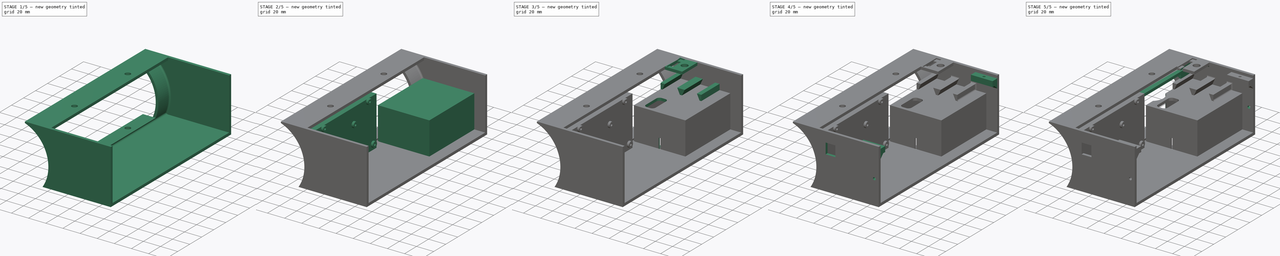
[diagram: build sequence overview — one tinted view per stage of 5, left to right]
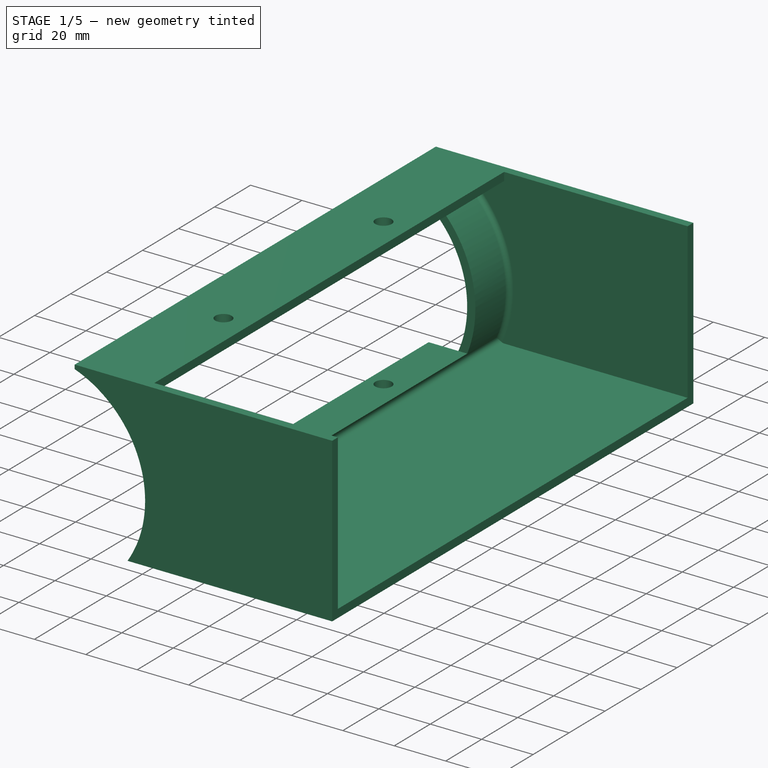
[diagram: stage 1 of 5 — iso view after this stage's code; geometry added in this stage tinted green]
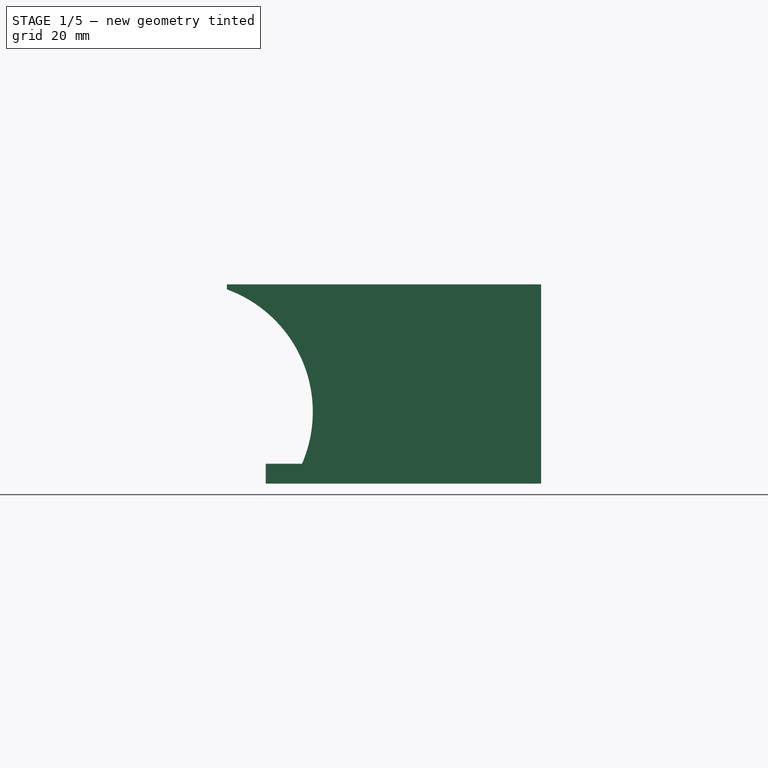
[diagram: stage 1 of 5 — front view after this stage's code; geometry added in this stage tinted green]
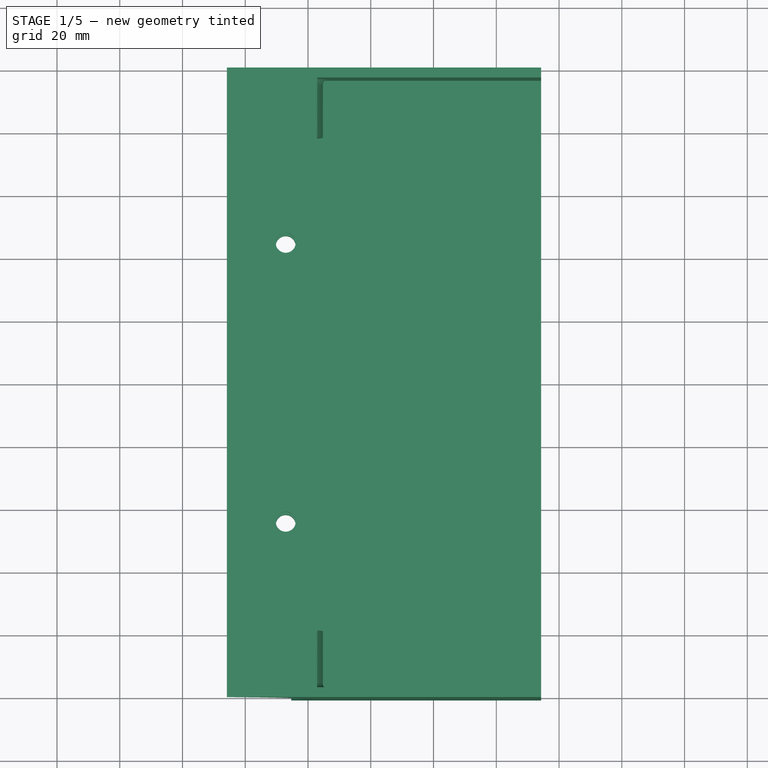
[diagram: stage 1 of 5 — top view after this stage's code; geometry added in this stage tinted green]
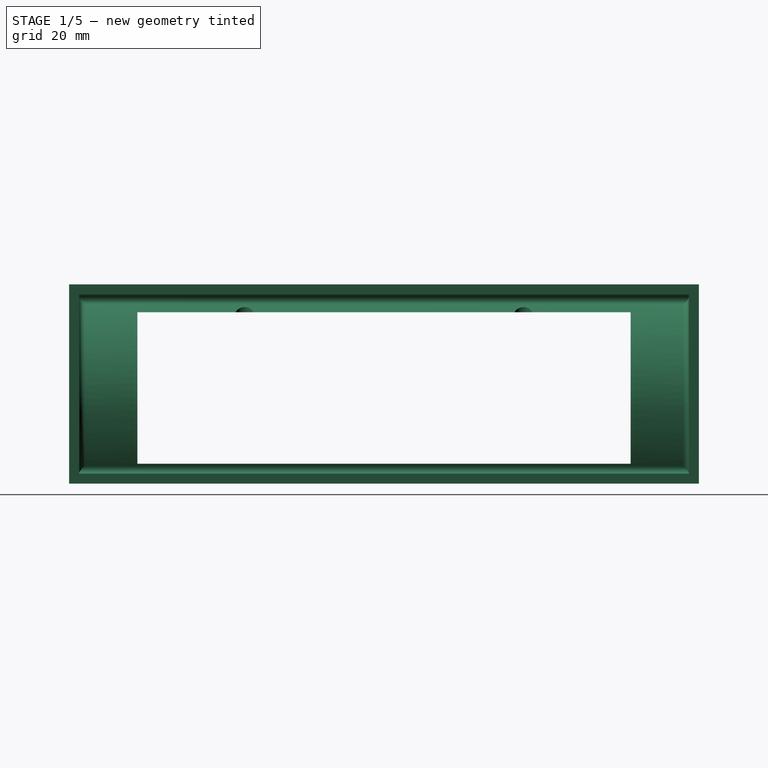
[diagram: stage 1 of 5 — right view after this stage's code; geometry added in this stage tinted green]
FCSTD DOCUMENT  (FreeCAD 0.20R27936 (Git))
Label: Nose
License: All rights reserved
LicenseURL: http://en.wikipedia.org/wiki/All_rights_reserved
objects: Sketcher::SketchObject×31, PartDesign::Pocket×18, PartDesign::Pad×13, PartDesign::Fillet×2, PartDesign::Chamfer×2, PartDesign::Plane×1, PartDesign::Body×1
note: 103 computed .brp shape members not serialized (recipe doc carries the construction recipe); baked Part::Feature solids carry a one-line shape summary decoded from their .brp

FEATURE [Sketcher::SketchObject] Sketch
  FullyConstrained = true
  MapMode = 5
  Placement = pos=(0,0,0) rot=(1,0,0;1.5708rad)
  Support = -> [XZ_Plane]
  sketch-geometry (5):
    g0: ArcOfCircle CenterX=0 CenterY=22.86 CenterZ=0 NormalX=0 NormalY=0 NormalZ=1 AngleXU=0 Radius=41.529 StartAngle=5.70027 EndAngle=7.50689
    g1: LineSegment StartX=14.1266 StartY=61.9125 StartZ=0 EndX=14.1266 EndY=63.5 EndZ=0
    g2: LineSegment StartX=14.1266 StartY=63.5 StartZ=0 EndX=114.3 EndY=63.5 EndZ=0
    g3: LineSegment StartX=114.3 StartY=63.5 StartZ=0 EndX=114.3 EndY=0 EndZ=0
    g4: LineSegment StartX=114.3 StartY=0 StartZ=0 EndX=34.671 EndY=1.07e-14 EndZ=0
  constraints (16):
    c: PointOnObject(g0,g-2)
    c: PointOnObject(g0,g-1)
    c: Coincident(g1,g0)
    c: Vertical(g1)
    c: Coincident(g2,g1)
    c: Horizontal(g2)
    c: Coincident(g3,g2)
    c: PointOnObject(g3,g-1)
    c: Vertical(g3)
    c: Coincident(g4,g3)
    c: Coincident(g4,g0)
    c: Radius(g0) = 41.529
    c: Distance(g-1,g0) = 22.86
    c: Distance(g1) = 1.5875
    c: DistanceY(g-1,g1) = 63.5
    c: Distance(g-1,g3) = 114.3
FEATURE [PartDesign::Pad] Pad
  Direction = (0,-1,2e-16)
  Length = 200.66
  Length2 = 10.0076
  Placement = pos=(0,0,0) rot=(1,0,0;1.5708rad)
  Profile = -> Sketch
  ReferenceAxis = -> Sketch [N_Axis]
  Type = 0
FEATURE [Sketcher::SketchObject] Sketch001
  ExternalGeometry = -> [Pad]
  FullyConstrained = true
  MapMode = 5
  Placement = pos=(0,0,1.49e-14) rot=(1,0,0;3.14159rad)
  Support = -> [Pad]
  sketch-geometry (7):
    g0: LineSegment StartX=34.671 StartY=178.943 StartZ=0 EndX=26.543 EndY=178.943 EndZ=0
    g1: LineSegment StartX=26.543 StartY=178.943 StartZ=0 EndX=26.543 EndY=21.717 EndZ=0
    g2: LineSegment StartX=26.543 StartY=21.717 StartZ=0 EndX=34.671 EndY=21.717 EndZ=0
    g3: LineSegment StartX=34.671 StartY=21.717 StartZ=0 EndX=34.671 EndY=178.943 EndZ=0
    g4: LineSegment StartX=34.671 StartY=178.943 StartZ=0 EndX=41.021 EndY=178.943 EndZ=0
    g5: LineSegment StartX=41.021 StartY=178.943 StartZ=0 EndX=41.021 EndY=21.717 EndZ=0
    g6: LineSegment StartX=41.021 StartY=21.717 StartZ=0 EndX=34.671 EndY=21.717 EndZ=0
  constraints (19):
    c: Coincident(g0,g1)
    c: Coincident(g1,g2)
    c: Coincident(g2,g3)
    c: Coincident(g3,g0)
    c: Horizontal(g0)
    c: Horizontal(g2)
    c: Vertical(g1)
    c: Distance(g0) = 8.128
    c: Tangent(g3,g-3)
    c: Distance(g0,g-3) = 21.717
    c: Distance(g2,g-3) = 21.717
    c: Coincident(g4,g0)
    c: Horizontal(g4)
    c: Coincident(g5,g4)
    c: Vertical(g5)
    c: Coincident(g6,g5)
    c: Coincident(g6,g2)
    c: Horizontal(g6)
    c: Distance(g6) = 6.35
FEATURE [PartDesign::Pad] Pad001
  BaseFeature = -> Pad
  Direction = (-1e-16,-7e-16,-1)
  Length = 6.35
  Length2 = 10.0076
  Placement = pos=(0,0,0) rot=(1,0,0;1.5708rad)
  Profile = -> Sketch001
  ReferenceAxis = -> Sketch001 [N_Axis]
  Refine = true
  Reversed = true
  Type = 0
FEATURE [Sketcher::SketchObject] Sketch002
  ExternalGeometry = -> [Pad001]
  FullyConstrained = true
  MapMode = 5
  Placement = pos=(0,0,0) rot=(0.57735,0.57735,0.57735;2.0944rad)
  Support = -> [YZ_Plane]
  sketch-geometry (4):
    g0: LineSegment StartX=-21.717 StartY=54.61 StartZ=0 EndX=-178.943 EndY=54.61 EndZ=0
    g1: LineSegment StartX=-178.943 StartY=54.61 StartZ=0 EndX=-178.943 EndY=6.35 EndZ=0
    g2: LineSegment StartX=-178.943 StartY=6.35 StartZ=0 EndX=-21.717 EndY=6.35 EndZ=0
    g3: LineSegment StartX=-21.717 StartY=6.35 StartZ=0 EndX=-21.717 EndY=54.61 EndZ=0
  constraints (9):
    c: Coincident(g0,g1)
    c: Coincident(g1,g2)
    c: Coincident(g2,g3)
    c: Coincident(g3,g0)
    c: Horizontal(g0)
    c: Tangent(g-5,g3)
    c: Tangent(g-3,g1)
    c: Tangent(g-4,g2)
    c: Distance(g3) = 48.26
FEATURE [PartDesign::Pocket] Pocket
  BaseFeature = -> Pad001
  Direction = (-1,2e-16,-3e-16)
  Length = 76.2
  Length2 = 5.0038
  Placement = pos=(0,0,0) rot=(1,0,0;1.5708rad)
  Profile = -> Sketch002
  ReferenceAxis = -> Sketch002 [N_Axis]
  Reversed = true
  Type = 1
FEATURE [PartDesign::Plane] DatumPlane
  AttachmentOffset = pos=(0,0,-100.33) rot=(0,0,1;0rad)
  Length = 161.506
  MapMode = 5
  Placement = pos=(0,-100.33,2.23e-14) rot=(-1,0,0;1.5708rad)
  ResizeMode = 0
  Support = -> [Pocket]
  Width = 110.706
FEATURE [Sketcher::SketchObject] Sketch003
  ExternalGeometry = -> [Pocket]
  FullyConstrained = false
  MapMode = 5
  Placement = pos=(0,-100.33,2.23e-14) rot=(-1,0,0;1.5708rad)
  Support = -> [DatumPlane]
  sketch-geometry (4):
    g0: ArcOfCircle CenterX=0 CenterY=-22.86 CenterZ=0 NormalX=0 NormalY=0 NormalZ=1 AngleXU=0 Radius=44.704 StartAngle=5.28945 EndAngle=6.73916
    g1: LineSegment StartX=40.1366 StartY=-3.175 StartZ=0 EndX=114.3 EndY=-3.175 EndZ=0
    g2: LineSegment StartX=24.389 StartY=-60.325 StartZ=0 EndX=114.3 EndY=-60.325 EndZ=0
    g3: LineSegment StartX=114.3 StartY=-60.325 StartZ=0 EndX=114.3 EndY=-3.175 EndZ=0
  constraints (11):
    c: Coincident(g0,g-3)
    c: Coincident(g1,g0)
    c: Horizontal(g1)
    c: Coincident(g2,g0)
    c: Horizontal(g2)
    c: Coincident(g3,g2)
    c: Coincident(g3,g1)
    c: Tangent(g-4,g3)
    c: Radius(g0) = 44.704
    c: Distance(g0,g-5) = 3.175
    c: Distance(g0,g-6) = 3.175
FEATURE [PartDesign::Pocket] Pocket001
  BaseFeature = -> Pocket
  Direction = (0,-1,1.4e-15)
  Length = 194.31
  Length2 = 5.0038
  Midplane = true
  Placement = pos=(0,0,0) rot=(1,0,0;1.5708rad)
  Profile = -> Sketch003
  ReferenceAxis = -> Sketch003 [N_Axis]
  Type = 0
FEATURE [PartDesign::Fillet] Fillet
  Base = -> Pocket001 [Edge43,Edge46,Edge45,Edge44]
  BaseFeature = -> Pocket001
  Placement = pos=(0,0,0) rot=(1,0,0;1.5708rad)
  Radius = 1.778
  SupportTransform = false
  UseAllEdges = false
FEATURE [Sketcher::SketchObject] Sketch004
  ExternalGeometry = -> [Fillet]
  FullyConstrained = true
  MapMode = 5
  Placement = pos=(0,0,1.48e-14) rot=(1,0,0;3.14159rad)
  Support = -> [Fillet]
  sketch-geometry (4):
    g0: Circle CenterX=32.893 CenterY=144.78 CenterZ=0 NormalX=0 NormalY=0 NormalZ=1 AngleXU=0 Radius=3.175
    g1: Circle CenterX=32.893 CenterY=55.88 CenterZ=0 NormalX=0 NormalY=0 NormalZ=1 AngleXU=0 Radius=3.175
    g2: LineSegment StartX=32.893 StartY=144.78 StartZ=0 EndX=32.893 EndY=55.88 EndZ=0
    g3: LineSegment StartX=26.543 StartY=100.33 StartZ=0 EndX=32.893 EndY=100.33 EndZ=0
  constraints (10):
    c: Equal(g1,g0)
    c: Diameter(g0) = 6.35
    c: Distance(g0,g1) = 88.9
    c: Distance(g0,g-3) = 6.35
    c: Coincident(g2,g0)
    c: Coincident(g2,g1)
    c: Vertical(g2)
    c: Horizontal(g3)
    c: Symmetric(g-3,g-3,g3)
    c: Symmetric(g0,g1,g3)
FEATURE [PartDesign::Pocket] Pocket002
  BaseFeature = -> Fillet
  Direction = (1e-16,2e-15,1)
  Length = 5.0038
  Length2 = 5.0038
  Placement = pos=(0,0,0) rot=(1,0,0;1.5708rad)
  Profile = -> Sketch004
  ReferenceAxis = -> Sketch004 [N_Axis]
  Type = 1
FEATURE [Sketcher::SketchObject] Sketch005
  ExternalGeometry = -> [Pocket002]
  FullyConstrained = true
  MapMode = 5
  Placement = pos=(0,2.79e-14,63.5) rot=(0,0,1;3.14159rad)
  Support = -> [Pocket002]
  sketch-geometry (4):
    g0: LineSegment StartX=-42.8942 StartY=197.485 StartZ=0 EndX=-114.3 EndY=197.485 EndZ=0
    g1: LineSegment StartX=-114.3 StartY=197.485 StartZ=0 EndX=-114.3 EndY=3.175 EndZ=0
    g2: LineSegment StartX=-114.3 StartY=3.175 StartZ=0 EndX=-42.8942 EndY=3.175 EndZ=0
    g3: LineSegment StartX=-42.8942 StartY=3.175 StartZ=0 EndX=-42.8942 EndY=197.485 EndZ=0
  constraints (10):
    c: Coincident(g0,g1)
    c: Coincident(g1,g2)
    c: Coincident(g2,g3)
    c: Coincident(g3,g0)
    c: Horizontal(g0)
    c: Horizontal(g2)
    c: Vertical(g1)
    c: Vertical(g3)
    c: Coincident(g0,g-3)
    c: Coincident(g1,g-4)
FEATURE [PartDesign::Pocket] Pocket003
  BaseFeature = -> Pocket002
  Direction = (0,-7e-16,-1)
  Length = 5.0038
  Length2 = 5.0038
  Placement = pos=(0,0,0) rot=(1,0,0;1.5708rad)
  Profile = -> Sketch005
  ReferenceAxis = -> Sketch005 [N_Axis]
  Refine = true
  Type = 0
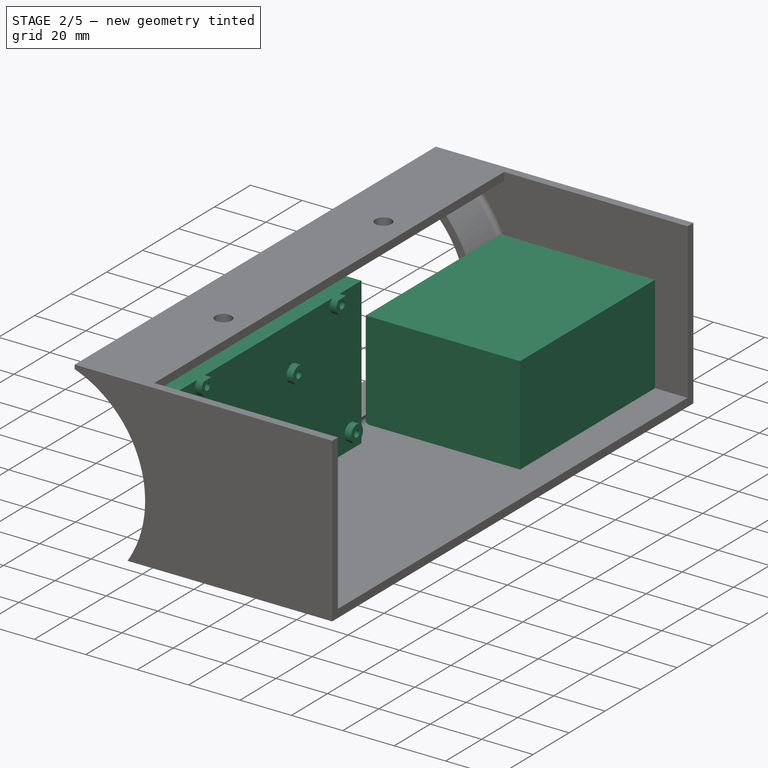
[diagram: stage 2 of 5 — iso view after this stage's code; geometry added in this stage tinted green]
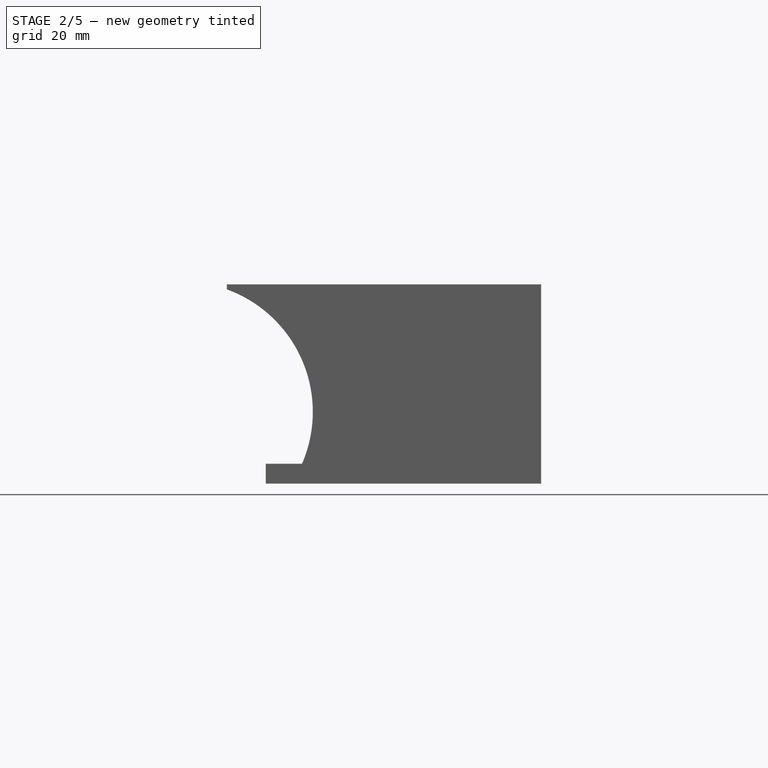
[diagram: stage 2 of 5 — front view after this stage's code; geometry added in this stage tinted green]
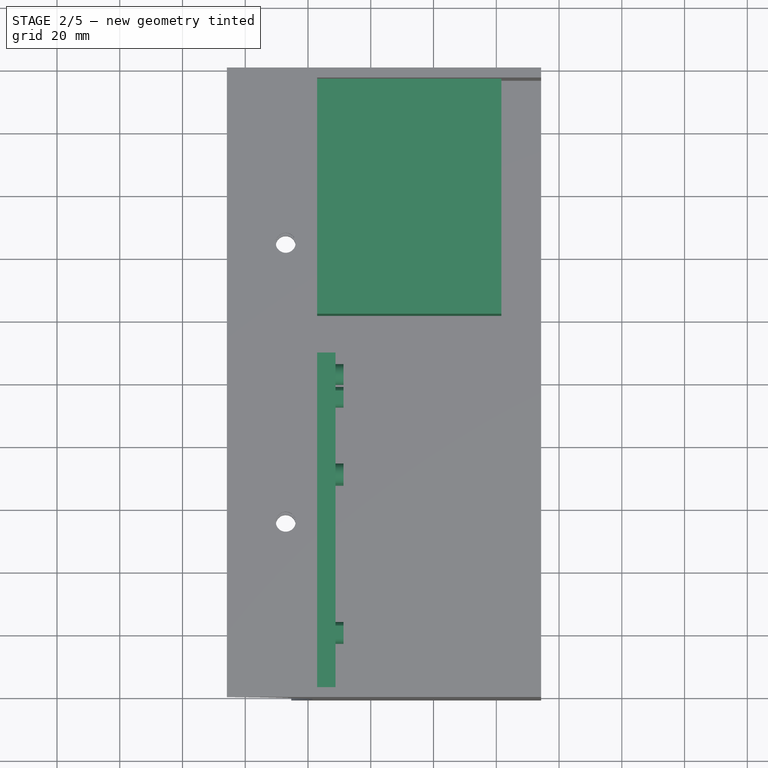
[diagram: stage 2 of 5 — top view after this stage's code; geometry added in this stage tinted green]
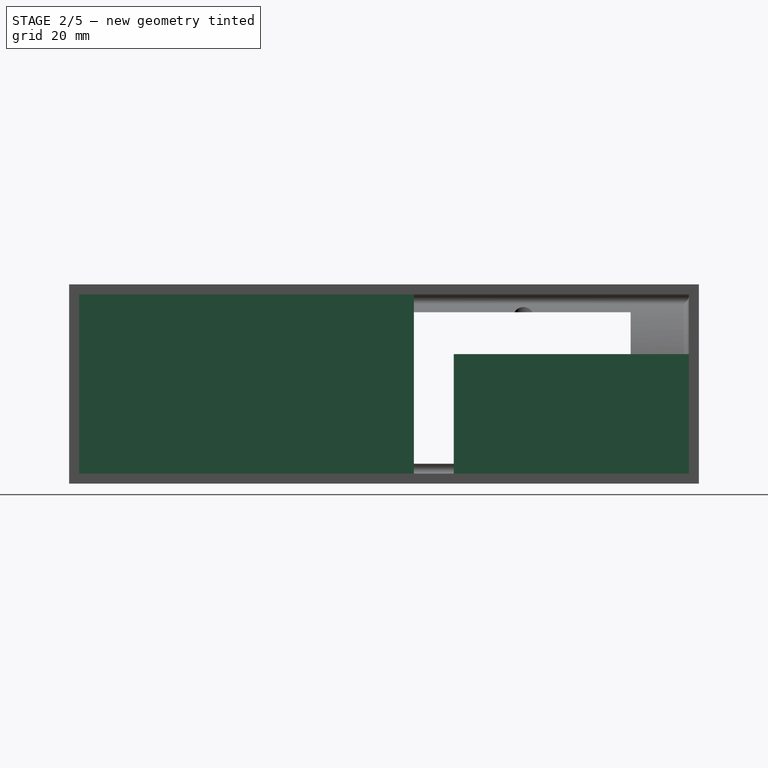
[diagram: stage 2 of 5 — right view after this stage's code; geometry added in this stage tinted green]
FEATURE [Sketcher::SketchObject] Sketch006
  ExternalGeometry = -> [Pocket003]
  FullyConstrained = true
  MapMode = 5
  Placement = pos=(-3.94e-14,-178.943,7.87e-14) rot=(-1,0,0;1.5708rad)
  Support = -> [Pocket003]
  sketch-geometry (5):
    g0: ArcOfCircle CenterX=3.94e-14 CenterY=-22.86 CenterZ=0 NormalX=0 NormalY=0 NormalZ=1 AngleXU=0 Radius=41.529 StartAngle=5.15848 EndAngle=6.77702
    g1: LineSegment StartX=48.768 StartY=-3.175 StartZ=0 EndX=36.5672 EndY=-3.175 EndZ=0
    g2: LineSegment StartX=17.9174 StartY=-60.325 StartZ=0 EndX=48.768 EndY=-60.325 EndZ=0
    g3: LineSegment StartX=48.768 StartY=-3.175 StartZ=0 EndX=48.768 EndY=-60.325 EndZ=0
    g4: LineSegment StartX=44.704 StartY=-3.175 StartZ=0 EndX=44.704 EndY=-60.325 EndZ=0
  constraints (14):
    c: Equal(g-3,g0)
    c: Coincident(g1,g0)
    c: Coincident(g2,g0)
    c: Tangent(g2,g-5) = -1.5708
    c: Tangent(g1,g-4) = 1.5708
    c: Coincident(g0,g-3)
    c: Coincident(g3,g1)
    c: Coincident(g3,g2)
    c: Vertical(g3)
    c: PointOnObject(g4,g1)
    c: PointOnObject(g4,g2)
    c: Vertical(g4)
    c: Tangent(g4,g-6)
    c: Distance(g2,g4) = 4.064
FEATURE [PartDesign::Pad] Pad002
  BaseFeature = -> Pocket003
  Direction = (2e-16,1,-7e-16)
  Length = 10.0076
  Length2 = 10.0076
  Placement = pos=(0,0,0) rot=(1,0,0;1.5708rad)
  Profile = -> Sketch006
  ReferenceAxis = -> Sketch006 [N_Axis]
  Refine = true
  Type = 3
  UpToFace = -> Pocket003 [Face29]
FEATURE [Sketcher::SketchObject] Sketch007
  ExternalGeometry = -> [Pad002]
  FullyConstrained = true
  MapMode = 5
  Placement = pos=(48.768,-1.07e-14,0) rot=(0.707107,0,0.707107;3.14159rad)
  Support = -> [Pad002]
  sketch-geometry (4):
    g0: LineSegment StartX=60.325 StartY=197.485 StartZ=0 EndX=3.175 EndY=197.485 EndZ=0
    g1: LineSegment StartX=3.175 StartY=197.485 StartZ=0 EndX=3.175 EndY=90.805 EndZ=0
    g2: LineSegment StartX=3.175 StartY=90.805 StartZ=0 EndX=60.325 EndY=90.805 EndZ=0
    g3: LineSegment StartX=60.325 StartY=90.805 StartZ=0 EndX=60.325 EndY=197.485 EndZ=0
  constraints (11):
    c: Coincident(g0,g1)
    c: Coincident(g1,g2)
    c: Coincident(g2,g3)
    c: Coincident(g3,g0)
    c: Horizontal(g0)
    c: Horizontal(g2)
    c: Vertical(g1)
    c: Vertical(g3)
    c: Coincident(g0,g-4)
    c: Distance(g1) = 106.68
    c: PointOnObject(g-3,g1)
FEATURE [PartDesign::Pad] Pad003
  BaseFeature = -> Pad002
  Direction = (1,-2e-16,2e-16)
  Length = 7.239
  Length2 = 10.0076
  Placement = pos=(0,0,0) rot=(1,0,0;1.5708rad)
  Profile = -> Sketch007
  ReferenceAxis = -> Sketch007 [N_Axis]
  Refine = true
  Reversed = true
  Type = 0
FEATURE [Sketcher::SketchObject] Sketch008
  ExternalGeometry = -> [Pad003]
  FullyConstrained = true
  MapMode = 5
  Placement = pos=(-1.8e-15,8e-15,6.35) rot=(0,0,1;3.14159rad)
  Support = -> [Pad003]
  sketch-geometry (1):
    g0: Circle CenterX=-32.893 CenterY=144.78 CenterZ=0 NormalX=0 NormalY=0 NormalZ=1 AngleXU=0 Radius=13.335
  constraints (2):
    c: Coincident(g0,g-3)
    c: Diameter(g0) = 26.67
FEATURE [PartDesign::Pocket] Pocket004
  BaseFeature = -> Pad003
  Direction = (3e-16,-1.8e-15,-1)
  Length = 0
  Length2 = 5.0038
  Placement = pos=(0,0,0) rot=(1,0,0;1.5708rad)
  Profile = -> Sketch008
  ReferenceAxis = -> Sketch008 [N_Axis]
  Type = 3
  UpToFace = -> Pad003 [Face9]
FEATURE [Sketcher::SketchObject] Sketch009
  ExternalGeometry = -> [Pocket004]
  FullyConstrained = true
  MapMode = 5
  Placement = pos=(48.768,-9.8e-15,1.22e-14) rot=(0.707107,0,0.707107;3.14159rad)
  Support = -> [Pocket004]
  sketch-geometry (10):
    g0: Circle CenterX=57.785 CenterY=179.959 CenterZ=0 NormalX=0 NormalY=0 NormalZ=1 AngleXU=0 Radius=1.397
    g1: Circle CenterX=9.525 CenterY=179.451 CenterZ=0 NormalX=0 NormalY=0 NormalZ=1 AngleXU=0 Radius=1.397
    g2: Circle CenterX=42.545 CenterY=129.159 CenterZ=0 NormalX=0 NormalY=0 NormalZ=1 AngleXU=0 Radius=1.397
    g3: Circle CenterX=14.605 CenterY=129.159 CenterZ=0 NormalX=0 NormalY=0 NormalZ=1 AngleXU=0 Radius=1.397
    g4: Circle CenterX=57.785 CenterY=105.029 CenterZ=0 NormalX=0 NormalY=0 NormalZ=1 AngleXU=0 Radius=1.397
    g5: Circle CenterX=9.525 CenterY=96.901 CenterZ=0 NormalX=0 NormalY=0 NormalZ=1 AngleXU=0 Radius=1.397
    g6: LineSegment StartX=42.545 StartY=129.159 StartZ=0 EndX=14.605 EndY=129.159 EndZ=0
    g7: LineSegment StartX=9.525 StartY=96.901 StartZ=0 EndX=9.525 EndY=179.451 EndZ=0
    g8: LineSegment StartX=57.785 StartY=179.959 StartZ=0 EndX=57.785 EndY=105.029 EndZ=0
    g9: LineSegment StartX=57.785 StartY=179.959 StartZ=0 EndX=9.525 EndY=179.959 EndZ=0
  constraints (27):
    c: Equal(g0,g1)
    c: Equal(g1,g2)
    c: Equal(g2,g3)
    c: Equal(g3,g5)
    c: Equal(g5,g4)
    c: Diameter(g4) = 2.794
    c: Coincident(g6,g2)
    c: Coincident(g6,g3)
    c: Coincident(g7,g5)
    c: Coincident(g7,g1)
    c: Vertical(g7)
    c: Horizontal(g6)
    c: Coincident(g8,g0)
    c: Coincident(g8,g4)
    c: Vertical(g8)
    c: Coincident(g9,g0)
    c: Horizontal(g9)
    c: Distance(g1,g9) = 0.508
    c: Distance(g2,g8) = 15.24
    c: Distance(g6) = 27.94
    c: Distance(g3,g7) = 5.08
    c: Distance(g4,g6) = 24.13
    c: Distance(g7) = 82.55
    c: Distance(g1,g-4) = 6.35
    c: Distance(g1,g-3) = 18.034
    c: Distance(g2,g9) = 50.8
    c: PointOnObject(g9,g7)
FEATURE [PartDesign::Pocket] Pocket005  label="Arduino Mounting Holes"
  BaseFeature = -> Pocket004
  Direction = (-1,2e-16,-2e-16)
  Length = 5.08
  Length2 = 5.0038
  Placement = pos=(0,0,0) rot=(1,0,0;1.5708rad)
  Profile = -> Sketch009
  ReferenceAxis = -> Sketch009 [N_Axis]
  Type = 0
FEATURE [Sketcher::SketchObject] Sketch010
  ExternalGeometry = -> [Pocket005]
  FullyConstrained = true
  MapMode = 5
  Placement = pos=(48.768,-9.8e-15,1.22e-14) rot=(0.707107,0,0.707107;3.14159rad)
  Support = -> [Pocket005]
  sketch-geometry (14):
    g0: ArcOfCircle CenterX=57.785 CenterY=179.959 CenterZ=0 NormalX=0 NormalY=0 NormalZ=1 AngleXU=0 Radius=3.302 StartAngle=0.69316 EndAngle=5.59003
    g1: Circle CenterX=57.785 CenterY=179.959 CenterZ=0 NormalX=0 NormalY=0 NormalZ=1 AngleXU=0 Radius=1.397
    g2: Circle CenterX=9.525 CenterY=179.451 CenterZ=0 NormalX=0 NormalY=0 NormalZ=1 AngleXU=0 Radius=3.302
    g3: Circle CenterX=9.525 CenterY=179.451 CenterZ=0 NormalX=0 NormalY=0 NormalZ=1 AngleXU=0 Radius=1.397
    g4: Circle CenterX=14.605 CenterY=129.159 CenterZ=0 NormalX=0 NormalY=0 NormalZ=1 AngleXU=0 Radius=1.397
    g5: Circle CenterX=14.605 CenterY=129.159 CenterZ=0 NormalX=0 NormalY=0 NormalZ=1 AngleXU=0 Radius=3.302
    g6: Circle CenterX=42.545 CenterY=129.159 CenterZ=0 NormalX=0 NormalY=0 NormalZ=1 AngleXU=0 Radius=1.397
    g7: Circle CenterX=42.545 CenterY=129.159 CenterZ=0 NormalX=0 NormalY=0 NormalZ=1 AngleXU=0 Radius=3.302
    g8: Circle CenterX=57.785 CenterY=105.029 CenterZ=0 NormalX=0 NormalY=0 NormalZ=1 AngleXU=0 Radius=1.397
    g9: ArcOfCircle CenterX=57.785 CenterY=105.029 CenterZ=0 NormalX=0 NormalY=0 NormalZ=1 AngleXU=0 Radius=3.302 StartAngle=0.69316 EndAngle=5.59003
    g10: Circle CenterX=9.525 CenterY=96.901 CenterZ=0 NormalX=0 NormalY=0 NormalZ=1 AngleXU=0 Radius=1.397
    g11: Circle CenterX=9.525 CenterY=96.901 CenterZ=0 NormalX=0 NormalY=0 NormalZ=1 AngleXU=0 Radius=3.302
    g12: LineSegment StartX=60.325 StartY=182.069 StartZ=0 EndX=60.325 EndY=177.849 EndZ=0
    g13: LineSegment StartX=60.325 StartY=107.139 StartZ=0 EndX=60.325 EndY=102.919 EndZ=0
  constraints (32):
    c: Coincident(g0,g-3)
    c: Coincident(g1,g0)
    c: Coincident(g2,g-8)
    c: Coincident(g3,g2)
    c: Coincident(g4,g-5)
    c: Coincident(g5,g4)
    c: Coincident(g6,g-4)
    c: Coincident(g7,g6)
    c: Coincident(g8,g-7)
    c: Coincident(g9,g8)
    c: Coincident(g10,g-6)
    c: Coincident(g11,g10)
    c: Equal(g10,g-6)
    c: Equal(g4,g-5)
    c: Equal(g6,g-4)
    c: Equal(g1,g-3)
    c: Equal(g3,g-8)
    c: Equal(g8,g-7)
    c: Equal(g5,g7)
    c: Equal(g7,g9)
    c: Equal(g9,g11)
    c: Equal(g11,g2)
    c: Equal(g2,g0)
    c: Diameter(g2) = 6.604
    c: PointOnObject(g12,g0)
    c: PointOnObject(g12,g0)
    c: Tangent(g13,g-9)
    c: Tangent(g12,g-9)
    c: PointOnObject(g0,g-9)
    c: PointOnObject(g0,g-9)
    c: Coincident(g9,g13)
    c: Coincident(g9,g13)
FEATURE [PartDesign::Pad] Pad004
  BaseFeature = -> Pocket005
  Direction = (1,-2e-16,2e-16)
  Length = 2.54
  Length2 = 10.0076
  Placement = pos=(0,0,0) rot=(1,0,0;1.5708rad)
  Profile = -> Sketch010
  ReferenceAxis = -> Sketch010 [N_Axis]
  Type = 0
FEATURE [Sketcher::SketchObject] Sketch011
  ExternalGeometry = -> [Pad004]
  FullyConstrained = true
  MapMode = 5
  Placement = pos=(0,5.1e-15,3.175) rot=(0,0,1;3.14159rad)
  Support = -> [Pad004]
  sketch-geometry (5):
    g0: LineSegment StartX=-41.529 StartY=78.105 StartZ=0 EndX=-101.6 EndY=78.105 EndZ=0
    g1: LineSegment StartX=-101.6 StartY=78.105 StartZ=0 EndX=-101.6 EndY=3.175 EndZ=0
    g2: LineSegment StartX=-101.6 StartY=3.175 StartZ=0 EndX=-41.529 EndY=3.175 EndZ=0
    g3: LineSegment StartX=-41.529 StartY=3.175 StartZ=0 EndX=-41.529 EndY=78.105 EndZ=0
    g4: LineSegment StartX=-41.529 StartY=78.105 StartZ=0 EndX=-41.529 EndY=90.805 EndZ=0
  constraints (13):
    c: Coincident(g0,g1)
    c: Coincident(g1,g2)
    c: Coincident(g2,g3)
    c: Coincident(g3,g0)
    c: Horizontal(g0)
    c: Vertical(g1)
    c: Vertical(g3)
    c: Tangent(g2,g-5)
    c: Distance(g-5,g1) = 12.7
    c: Coincident(g-4,g4)
    c: Coincident(g4,g0)
    c: Vertical(g4)
    c: Distance(g4) = 12.7
FEATURE [PartDesign::Pad] Pad005
  BaseFeature = -> Pad004
  Direction = (0,2.5e-15,1)
  Length = 38.1
  Length2 = 10.0076
  Placement = pos=(0,0,0) rot=(1,0,0;1.5708rad)
  Profile = -> Sketch011
  ReferenceAxis = -> Sketch011 [N_Axis]
  Type = 0
FEATURE [Sketcher::SketchObject] Sketch012
  ExternalGeometry = -> [Pad005]
  FullyConstrained = true
  MapMode = 5
  Placement = pos=(0,0,1.48e-14) rot=(1,0,0;3.14159rad)
  Support = -> [Pad005]
  sketch-geometry (12):
    g0: LineSegment StartX=101.6 StartY=78.105 StartZ=0 EndX=41.529 EndY=78.105 EndZ=0
    g1: LineSegment StartX=41.529 StartY=78.105 StartZ=0 EndX=41.529 EndY=3.175 EndZ=0
    g2: LineSegment StartX=41.529 StartY=3.175 StartZ=0 EndX=101.6 EndY=3.175 EndZ=0
    g3: LineSegment StartX=101.6 StartY=3.175 StartZ=0 EndX=101.6 EndY=78.105 EndZ=0
    g4: LineSegment StartX=49.911 StartY=5.207 StartZ=0 EndX=93.218 EndY=5.207 EndZ=0
    g5: LineSegment StartX=99.568 StartY=11.557 StartZ=0 EndX=99.568 EndY=69.723 EndZ=0
    g6: LineSegment StartX=93.218 StartY=76.073 StartZ=0 EndX=49.911 EndY=76.073 EndZ=0
    g7: LineSegment StartX=43.561 StartY=69.723 StartZ=0 EndX=43.561 EndY=11.557 EndZ=0
    g8: ArcOfCircle CenterX=49.911 CenterY=69.723 CenterZ=0 NormalX=0 NormalY=0 NormalZ=1 AngleXU=0 Radius=6.35 StartAngle=1.5708 EndAngle=3.14159
    g9: ArcOfCircle CenterX=49.911 CenterY=11.557 CenterZ=0 NormalX=0 NormalY=0 NormalZ=1 AngleXU=0 Radius=6.35 StartAngle=3.14159 EndAngle=4.71239
    g10: ArcOfCircle CenterX=93.218 CenterY=11.557 CenterZ=0 NormalX=0 NormalY=0 NormalZ=1 AngleXU=0 Radius=6.35 StartAngle=4.71239 EndAngle=6.28319
    g11: ArcOfCircle CenterX=93.218 CenterY=69.723 CenterZ=0 NormalX=0 NormalY=0 NormalZ=1 AngleXU=0 Radius=6.35 StartAngle=-9e-16 EndAngle=1.5708
  constraints (29):
    c: Coincident(g0,g1)
    c: Coincident(g1,g2)
    c: Coincident(g2,g3)
    c: Coincident(g3,g0)
    c: Horizontal(g0)
    c: Vertical(g3)
    c: Coincident(g0,g-5)
    c: Tangent(g1,g-3)
    c: Tangent(g2,g-6)
    c: Horizontal(g4)
    c: Horizontal(g6)
    c: Vertical(g5)
    c: Vertical(g7)
    c: Tangent(g7,g8) = -1.5708
    c: Tangent(g6,g8) = -1.5708
    c: Tangent(g7,g9) = -1.5708
    c: Tangent(g4,g9) = -1.5708
    c: Tangent(g4,g10) = -1.5708
    c: Tangent(g5,g10) = -1.5708
    c: Tangent(g5,g11) = -1.5708
    c: Tangent(g6,g11) = -1.5708
    c: Equal(g8,g9)
    c: Equal(g9,g10)
    c: Equal(g10,g11)
    c: Radius(g11) = 6.35
    c: Distance(g7,g1) = 2.032
    c: Distance(g5,g3) = 2.032
    c: Distance(g4,g2) = 2.032
    c: Distance(g6,g0) = 2.032
FEATURE [PartDesign::Pocket] Pocket006
  BaseFeature = -> Pad005
  Direction = (1e-16,1.9e-15,1)
  Length = 38.1
  Length2 = 5.0038
  Placement = pos=(0,0,0) rot=(1,0,0;1.5708rad)
  Profile = -> Sketch012
  ReferenceAxis = -> Sketch012 [N_Axis]
  Type = 0
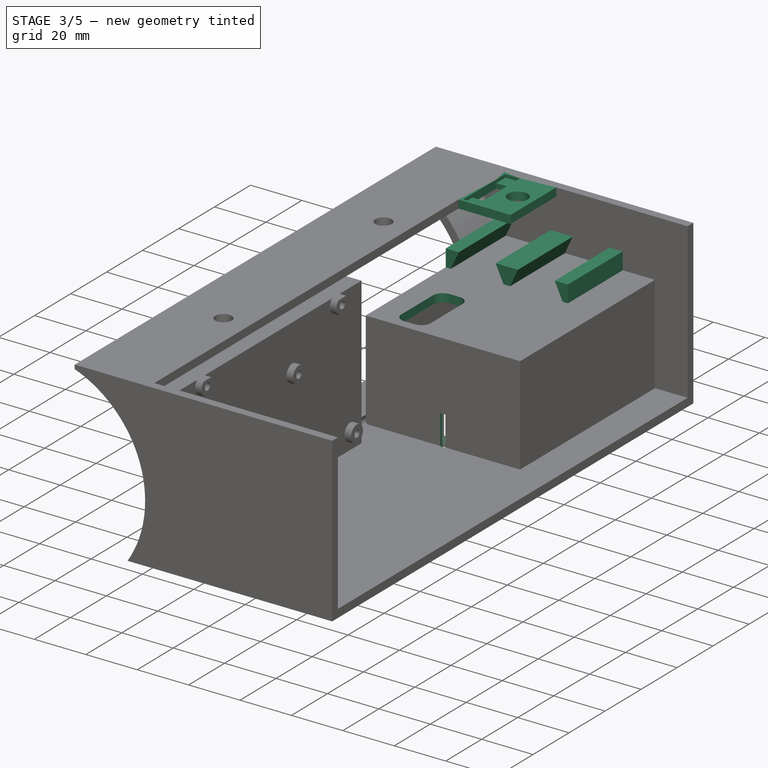
[diagram: stage 3 of 5 — iso view after this stage's code; geometry added in this stage tinted green]
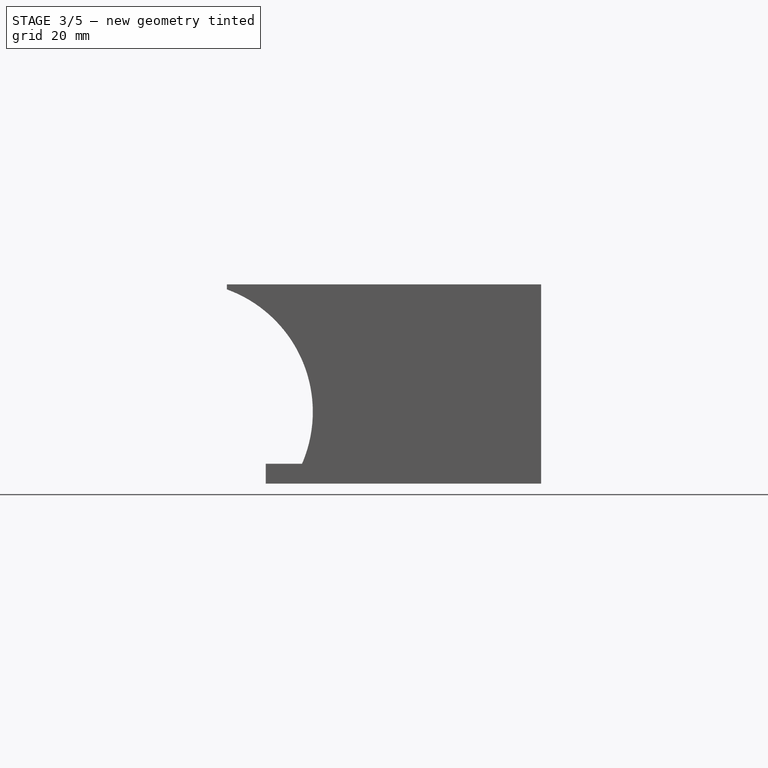
[diagram: stage 3 of 5 — front view after this stage's code; geometry added in this stage tinted green]
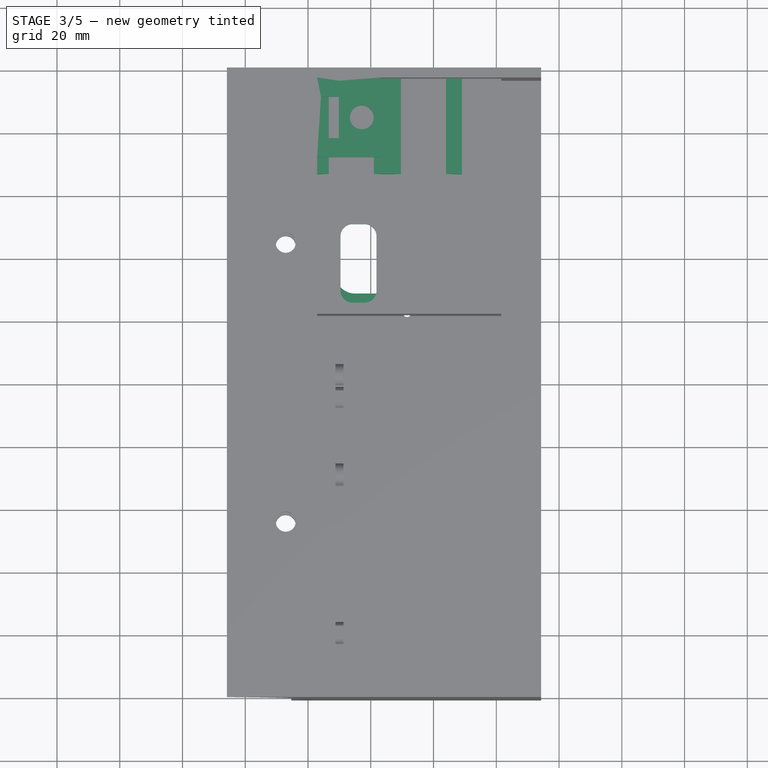
[diagram: stage 3 of 5 — top view after this stage's code; geometry added in this stage tinted green]
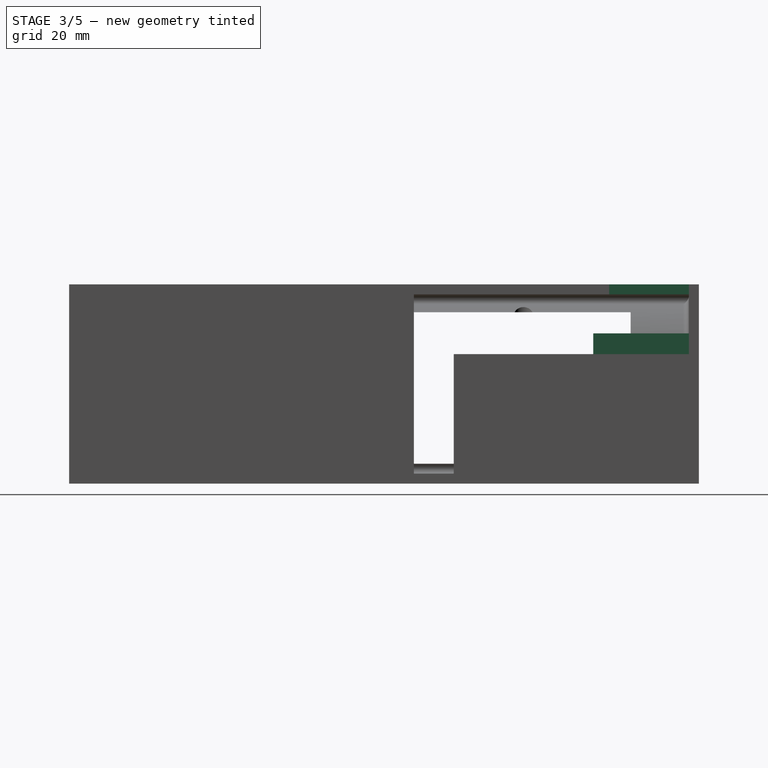
[diagram: stage 3 of 5 — right view after this stage's code; geometry added in this stage tinted green]
FEATURE [Sketcher::SketchObject] Sketch013
  ExternalGeometry = -> [Pocket006]
  FullyConstrained = true
  MapMode = 5
  Placement = pos=(0,0,1.48e-14) rot=(1,0,0;3.14159rad)
  Support = -> [Pocket006]
  sketch-geometry (16):
    g0: LineSegment StartX=54.991 StartY=70.993 StartZ=0 EndX=88.138 EndY=70.993 EndZ=0
    g1: LineSegment StartX=94.488 StartY=64.643 StartZ=0 EndX=94.488 EndY=16.637 EndZ=0
    g2: LineSegment StartX=88.138 StartY=10.287 StartZ=0 EndX=54.991 EndY=10.287 EndZ=0
    g3: LineSegment StartX=48.641 StartY=16.637 StartZ=0 EndX=48.641 EndY=64.643 EndZ=0
    g4: ArcOfCircle CenterX=88.138 CenterY=64.643 CenterZ=0 NormalX=0 NormalY=0 NormalZ=1 AngleXU=0 Radius=6.35 StartAngle=2e-16 EndAngle=1.5708
    g5: ArcOfCircle CenterX=88.138 CenterY=16.637 CenterZ=0 NormalX=0 NormalY=0 NormalZ=1 AngleXU=0 Radius=6.35 StartAngle=4.71239 EndAngle=6.28319
    g6: ArcOfCircle CenterX=54.991 CenterY=16.637 CenterZ=0 NormalX=0 NormalY=0 NormalZ=1 AngleXU=0 Radius=6.35 StartAngle=3.14159 EndAngle=4.71239
    g7: ArcOfCircle CenterX=54.991 CenterY=64.643 CenterZ=0 NormalX=0 NormalY=0 NormalZ=1 AngleXU=0 Radius=6.35 StartAngle=1.5708 EndAngle=3.14159
    g8: LineSegment StartX=49.911 StartY=76.073 StartZ=0 EndX=93.218 EndY=76.073 EndZ=0
    g9: LineSegment StartX=99.568 StartY=69.723 StartZ=0 EndX=99.568 EndY=11.557 EndZ=0
    g10: LineSegment StartX=93.218 StartY=5.207 StartZ=0 EndX=49.911 EndY=5.207 EndZ=0
    g11: LineSegment StartX=43.561 StartY=11.557 StartZ=0 EndX=43.561 EndY=69.723 EndZ=0
    g12: ArcOfCircle CenterX=49.911 CenterY=69.723 CenterZ=0 NormalX=0 NormalY=0 NormalZ=1 AngleXU=0 Radius=6.35 StartAngle=1.5708 EndAngle=3.14159
    g13: ArcOfCircle CenterX=93.218 CenterY=69.723 CenterZ=0 NormalX=0 NormalY=0 NormalZ=1 AngleXU=0 Radius=6.35 StartAngle=-9e-16 EndAngle=1.5708
    g14: ArcOfCircle CenterX=93.218 CenterY=11.557 CenterZ=0 NormalX=0 NormalY=0 NormalZ=1 AngleXU=0 Radius=6.35 StartAngle=4.71239 EndAngle=6.28319
    g15: ArcOfCircle CenterX=49.911 CenterY=11.557 CenterZ=0 NormalX=0 NormalY=0 NormalZ=1 AngleXU=0 Radius=6.35 StartAngle=3.14159 EndAngle=4.71239
  constraints (36):
    c: Horizontal(g0)
    c: Horizontal(g2)
    c: Vertical(g1)
    c: Vertical(g3)
    c: Tangent(g0,g4) = 1.5708
    c: Tangent(g1,g4) = 1.5708
    c: Tangent(g1,g5) = 1.5708
    c: Tangent(g2,g5) = 1.5708
    c: Tangent(g2,g6) = 1.5708
    c: Tangent(g3,g6) = 1.5708
    c: Tangent(g3,g7) = 1.5708
    c: Tangent(g0,g7) = 1.5708
    c: Equal(g7,g4)
    c: Equal(g4,g5)
    c: Equal(g5,g6)
    c: Radius(g6) = 6.35
    c: Distance(g0,g-3) = 5.08
    c: Distance(g3,g-6) = 5.08
    c: Distance(g1,g-4) = 5.08
    c: Distance(g2,g-5) = 5.08
    c: Tangent(g11,g12) = 1.5708
    c: Tangent(g8,g12) = 1.5708
    c: Tangent(g8,g13) = 1.5708
    c: Tangent(g9,g13) = 1.5708
    c: Tangent(g9,g14) = 1.5708
    c: Tangent(g10,g14) = 1.5708
    c: Tangent(g10,g15) = 1.5708
    c: Tangent(g11,g15) = 1.5708
    c: Tangent(g11,g-6)
    c: Tangent(g10,g-5)
    c: Tangent(g9,g-4)
    c: Tangent(g8,g-3)
    c: Equal(g15,g14)
    c: Equal(g14,g13)
    c: Equal(g13,g12)
    c: Equal(g12,g-7)
FEATURE [PartDesign::Pad] Pad006
  BaseFeature = -> Pocket006
  Direction = (-1e-16,-2e-15,-1)
  Length = 3.175
  Length2 = 10.0076
  Placement = pos=(0,0,0) rot=(1,0,0;1.5708rad)
  Profile = -> Sketch013
  ReferenceAxis = -> Sketch013 [N_Axis]
  Reversed = true
  Type = 0
FEATURE [Sketcher::SketchObject] Sketch014
  ExternalGeometry = -> [Pad006]
  FullyConstrained = true
  MapMode = 5
  Placement = pos=(0,0,1.48e-14) rot=(1,0,0;3.14159rad)
  Support = -> [Pad006]
  sketch-geometry (9):
    g0: LineSegment StartX=62.0395 StartY=70.993 StartZ=0 EndX=81.0895 EndY=70.993 EndZ=0
    g1: LineSegment StartX=81.0895 StartY=70.993 StartZ=0 EndX=81.0895 EndY=78.613 EndZ=0
    g2: LineSegment StartX=81.0895 StartY=78.613 StartZ=0 EndX=62.0395 EndY=78.613 EndZ=0
    g3: LineSegment StartX=62.0395 StartY=78.613 StartZ=0 EndX=62.0395 EndY=70.993 EndZ=0
    g4: LineSegment StartX=62.0395 StartY=10.287 StartZ=0 EndX=81.0895 EndY=10.287 EndZ=0
    g5: LineSegment StartX=81.0895 StartY=10.287 StartZ=0 EndX=81.0895 EndY=2.667 EndZ=0
    g6: LineSegment StartX=81.0895 StartY=2.667 StartZ=0 EndX=62.0395 EndY=2.667 EndZ=0
    g7: LineSegment StartX=62.0395 StartY=2.667 StartZ=0 EndX=62.0395 EndY=10.287 EndZ=0
    g8: LineSegment StartX=71.5645 StartY=2.667 StartZ=0 EndX=71.5645 EndY=78.613 EndZ=0
  constraints (25):
    c: Coincident(g0,g1)
    c: Coincident(g1,g2)
    c: Coincident(g2,g3)
    c: Coincident(g3,g0)
    c: Horizontal(g0)
    c: Horizontal(g2)
    c: Vertical(g1)
    c: Vertical(g3)
    c: PointOnObject(g0,g-3)
    c: Coincident(g4,g5)
    c: Coincident(g5,g6)
    c: Coincident(g6,g7)
    c: Coincident(g7,g4)
    c: Horizontal(g4)
    c: Horizontal(g6)
    c: Vertical(g5)
    c: Vertical(g7)
    c: PointOnObject(g4,g-4)
    c: Symmetric(g2,g1,g8)
    c: Symmetric(g-3,g-3,g8)
    c: Symmetric(g6,g5,g8)
    c: Equal(g5,g1)
    c: Distance(g1) = 7.62
    c: Distance(g4) = 19.05
    c: Equal(g0,g4)
FEATURE [PartDesign::Pocket] Pocket007
  BaseFeature = -> Pad006
  Direction = (1e-16,2.1e-15,1)
  Length = 2.032
  Length2 = 5.0038
  Placement = pos=(0,0,0) rot=(1,0,0;1.5708rad)
  Profile = -> Sketch014
  ReferenceAxis = -> Sketch014 [N_Axis]
  Type = 0
FEATURE [Sketcher::SketchObject] Sketch015
  ExternalGeometry = -> [Pocket007]
  FullyConstrained = true
  MapMode = 5
  Placement = pos=(3e-16,4.3e-15,2.032) rot=(1,0,0;3.14159rad)
  Support = -> [Pocket007]
  sketch-geometry (7):
    g0: Circle CenterX=71.5645 CenterY=77.089 CenterZ=0 NormalX=0 NormalY=0 NormalZ=1 AngleXU=0 Radius=1.397
    g1: Circle CenterX=71.5645 CenterY=3.937 CenterZ=0 NormalX=0 NormalY=0 NormalZ=1 AngleXU=0 Radius=1.397
    g2: LineSegment StartX=71.5645 StartY=77.089 StartZ=0 EndX=71.5645 EndY=3.937 EndZ=0
    g3: LineSegment StartX=71.5645 StartY=77.089 StartZ=0 EndX=71.5645 EndY=78.105 EndZ=0
    g4: LineSegment StartX=71.5645 StartY=77.089 StartZ=0 EndX=71.5645 EndY=76.073 EndZ=0
    g5: LineSegment StartX=71.5645 StartY=2.667 StartZ=0 EndX=71.5645 EndY=3.937 EndZ=0
    g6: LineSegment StartX=71.5645 StartY=3.937 StartZ=0 EndX=71.5645 EndY=5.207 EndZ=0
  constraints (19):
    c: Diameter(g0) = 2.794
    c: Equal(g1,g0)
    c: Coincident(g2,g0)
    c: Coincident(g2,g1)
    c: Symmetric(g-7,g-7,g2)
    c: Coincident(g3,g0)
    c: PointOnObject(g3,g-4)
    c: Vertical(g3)
    c: Coincident(g4,g0)
    c: PointOnObject(g4,g-3)
    c: Equal(g4,g3)
    c: Vertical(g4)
    c: PointOnObject(g5,g-7)
    c: Coincident(g5,g1)
    c: Coincident(g6,g1)
    c: PointOnObject(g6,g-5)
    c: Equal(g6,g5)
    c: Vertical(g5)
    c: Vertical(g6)
FEATURE [PartDesign::Pocket] Pocket008
  BaseFeature = -> Pocket007
  Direction = (1e-16,2.1e-15,1)
  Length = 12.7
  Length2 = 5.0038
  Placement = pos=(0,0,0) rot=(1,0,0;1.5708rad)
  Profile = -> Sketch015
  ReferenceAxis = -> Sketch015 [N_Axis]
  Type = 0
FEATURE [Sketcher::SketchObject] Sketch016
  FullyConstrained = false
  MapMode = 5
  Placement = pos=(0,1.032e-13,41.275) rot=(0,0,1;3.14159rad)
  Support = -> [Pocket008]
  sketch-geometry (8):
    g0: LineSegment StartX=-54.1705 StartY=74.5753 StartZ=0 EndX=-58.0054 EndY=74.5753 EndZ=0
    g1: LineSegment StartX=-61.8154 StartY=70.7653 StartZ=0 EndX=-61.8154 EndY=53.328 EndZ=0
    g2: LineSegment StartX=-58.0054 StartY=49.518 StartZ=0 EndX=-54.1705 EndY=49.518 EndZ=0
    g3: LineSegment StartX=-50.3605 StartY=53.328 StartZ=0 EndX=-50.3605 EndY=70.7653 EndZ=0
    g4: ArcOfCircle CenterX=-58.0054 CenterY=70.7653 CenterZ=0 NormalX=0 NormalY=0 NormalZ=1 AngleXU=0 Radius=3.81 StartAngle=1.5708 EndAngle=3.14159
    g5: ArcOfCircle CenterX=-58.0054 CenterY=53.328 CenterZ=0 NormalX=0 NormalY=0 NormalZ=1 AngleXU=0 Radius=3.81 StartAngle=3.14159 EndAngle=4.71239
    g6: ArcOfCircle CenterX=-54.1705 CenterY=53.328 CenterZ=0 NormalX=0 NormalY=0 NormalZ=1 AngleXU=0 Radius=3.81 StartAngle=4.71239 EndAngle=6.28319
    g7: ArcOfCircle CenterX=-54.1705 CenterY=70.7653 CenterZ=0 NormalX=0 NormalY=0 NormalZ=1 AngleXU=0 Radius=3.81 StartAngle=4e-16 EndAngle=1.5708
  constraints (16):
    c: Horizontal(g0)
    c: Horizontal(g2)
    c: Vertical(g1)
    c: Vertical(g3)
    c: Tangent(g0,g4) = -1.5708
    c: Tangent(g1,g4) = -1.5708
    c: Tangent(g1,g5) = -1.5708
    c: Tangent(g2,g5) = -1.5708
    c: Tangent(g2,g6) = -1.5708
    c: Tangent(g3,g6) = -1.5708
    c: Tangent(g3,g7) = -1.5708
    c: Tangent(g0,g7) = -1.5708
    c: Equal(g7,g4)
    c: Equal(g4,g5)
    c: Equal(g5,g6)
    c: Radius(g6) = 3.81
FEATURE [PartDesign::Pocket] Pocket009
  BaseFeature = -> Pocket008
  Direction = (0,-2.6e-15,-1)
  Length = 5.0038
  Length2 = 5.0038
  Placement = pos=(0,0,0) rot=(1,0,0;1.5708rad)
  Profile = -> Sketch016
  ReferenceAxis = -> Sketch016 [N_Axis]
  Type = 0
FEATURE [Sketcher::SketchObject] Sketch017
  ExternalGeometry = -> [Pocket009]
  FullyConstrained = false
  MapMode = 5
  Placement = pos=(0,2.79e-14,63.5) rot=(0,0,1;3.14159rad)
  Support = -> [Pocket009]
  sketch-geometry (10):
    g0: LineSegment StartX=-42.8942 StartY=3.175 StartZ=0 EndX=-63.2142 EndY=3.175 EndZ=0
    g1: LineSegment StartX=-63.2142 StartY=3.175 StartZ=0 EndX=-63.2142 EndY=28.575 EndZ=0
    g2: LineSegment StartX=-63.2142 StartY=28.575 StartZ=0 EndX=-42.8942 EndY=28.575 EndZ=0
    g3: LineSegment StartX=-42.8942 StartY=28.575 StartZ=0 EndX=-42.8942 EndY=3.175 EndZ=0
    g4: Circle CenterX=-57.1314 CenterY=15.875 CenterZ=0 NormalX=0 NormalY=0 NormalZ=1 AngleXU=0 Radius=3.81
    g5: LineSegment StartX=-44.1301 StartY=22.4536 StartZ=0 EndX=-49.8451 EndY=22.4536 EndZ=0
    g6: LineSegment StartX=-49.8451 StartY=22.4536 StartZ=0 EndX=-49.8451 EndY=9.2964 EndZ=0
    g7: LineSegment StartX=-49.8451 StartY=9.2964 StartZ=0 EndX=-44.1301 EndY=9.2964 EndZ=0
    g8: LineSegment StartX=-44.1301 StartY=9.2964 StartZ=0 EndX=-44.1301 EndY=22.4536 EndZ=0
    g9: LineSegment StartX=-42.8942 StartY=15.875 StartZ=0 EndX=-63.2142 EndY=15.875 EndZ=0
  constraints (25):
    c: Coincident(g0,g1)
    c: Coincident(g1,g2)
    c: Coincident(g2,g3)
    c: Coincident(g3,g0)
    c: Horizontal(g0)
    c: Horizontal(g2)
    c: Vertical(g1)
    c: Vertical(g3)
    c: Coincident(g0,g-3)
    c: Distance(g3) = 25.4
    c: Distance(g0) = 20.32
    c: Coincident(g5,g6)
    c: Coincident(g6,g7)
    c: Coincident(g7,g8)
    c: Coincident(g8,g5)
    c: Horizontal(g5)
    c: Horizontal(g7)
    c: Vertical(g6)
    c: Symmetric(g1,g0,g9)
    c: PointOnObject(g4,g9)
    c: Symmetric(g5,g7,g9)
    c: Symmetric(g2,g0,g9)
    c: Distance(g8) = 13.1572
    c: Distance(g7) = 5.715
    c: Diameter(g4) = 7.62
FEATURE [PartDesign::Pad] Pad007
  BaseFeature = -> Pocket009
  Direction = (0,7e-16,1)
  Length = 10.0076
  Length2 = 10.0076
  Placement = pos=(0,0,0) rot=(1,0,0;1.5708rad)
  Profile = -> Sketch017
  ReferenceAxis = -> Sketch017 [N_Axis]
  Type = 3
  UpToFace = -> Pocket009 [Face19]
FEATURE [Sketcher::SketchObject] Sketch018
  ExternalGeometry = -> [Pad007]
  FullyConstrained = true
  MapMode = 5
  Placement = pos=(0,5.14e-14,63.5) rot=(0,0,1;3.14159rad)
  Support = -> [Pad007]
  sketch-geometry (4):
    g0: LineSegment StartX=-49.8451 StartY=27.5336 StartZ=0 EndX=-44.1301 EndY=27.5336 EndZ=0
    g1: LineSegment StartX=-44.1301 StartY=27.5336 StartZ=0 EndX=-44.1301 EndY=4.2164 EndZ=0
    g2: LineSegment StartX=-44.1301 StartY=4.2164 StartZ=0 EndX=-49.8451 EndY=4.2164 EndZ=0
    g3: LineSegment StartX=-49.8451 StartY=4.2164 StartZ=0 EndX=-49.8451 EndY=27.5336 EndZ=0
  constraints (10):
    c: Coincident(g0,g1)
    c: Coincident(g1,g2)
    c: Coincident(g2,g3)
    c: Coincident(g3,g0)
    c: Horizontal(g0)
    c: Horizontal(g2)
    c: Tangent(g3,g-4)
    c: Tangent(g-3,g1)
    c: Distance(g0,g-3) = 5.08
    c: Distance(g-3,g1) = 5.08
FEATURE [PartDesign::Pocket] Pocket010
  BaseFeature = -> Pad007
  Direction = (0,-8e-16,-1)
  Length = 1.27
  Length2 = 5.0038
  Placement = pos=(0,0,0) rot=(1,0,0;1.5708rad)
  Profile = -> Sketch018
  ReferenceAxis = -> Sketch018 [N_Axis]
  Type = 0
FEATURE [Sketcher::SketchObject] Sketch019
  ExternalGeometry = -> [Pocket010]
  FullyConstrained = true
  MapMode = 5
  Placement = pos=(-3e-16,-3.175,3e-15) rot=(1,0,0;1.5708rad)
  Support = -> [Pocket010]
  sketch-geometry (14):
    g0: LineSegment StartX=43.561 StartY=41.275 StartZ=0 EndX=46.609 EndY=47.879 EndZ=0
    g1: LineSegment StartX=64.0178 StartY=41.275 StartZ=0 EndX=60.9698 EndY=47.879 EndZ=0
    g2: LineSegment StartX=60.9698 StartY=47.879 StartZ=0 EndX=69.6058 EndY=47.879 EndZ=0
    g3: LineSegment StartX=64.0178 StartY=41.275 StartZ=0 EndX=66.5578 EndY=41.275 EndZ=0
    g4: LineSegment StartX=46.609 StartY=47.879 StartZ=0 EndX=41.529 EndY=47.879 EndZ=0
    g5: LineSegment StartX=41.529 StartY=47.879 StartZ=0 EndX=41.529 EndY=41.275 EndZ=0
    g6: LineSegment StartX=41.529 StartY=41.275 StartZ=0 EndX=43.561 EndY=41.275 EndZ=0
    g7: LineSegment StartX=66.5578 StartY=41.275 StartZ=0 EndX=69.6058 EndY=47.879 EndZ=0
    g8: LineSegment StartX=89.0465 StartY=47.879 StartZ=0 EndX=83.9665 EndY=47.879 EndZ=0
    g9: LineSegment StartX=83.9665 StartY=47.879 StartZ=0 EndX=87.0145 EndY=41.275 EndZ=0
    g10: LineSegment StartX=87.0145 StartY=41.275 StartZ=0 EndX=89.0465 EndY=41.275 EndZ=0
    g11: LineSegment StartX=89.0465 StartY=41.275 StartZ=0 EndX=89.0465 EndY=47.879 EndZ=0
    g12: LineSegment StartX=44.2644 StartY=42.799 StartZ=0 EndX=63.3144 EndY=42.799 EndZ=0
    g13: LineSegment StartX=67.2612 StartY=42.799 StartZ=0 EndX=86.3112 EndY=42.799 EndZ=0
  constraints (40):
    c: PointOnObject(g0,g-3)
    c: PointOnObject(g1,g-3)
    c: Coincident(g2,g1)
    c: Horizontal(g2)
    c: PointOnObject(g3,g-3)
    c: Coincident(g3,g1)
    c: Coincident(g0,g4)
    c: Coincident(g4,g5)
    c: Vertical(g5)
    c: Coincident(g5,g6)
    c: Coincident(g6,g0)
    c: Coincident(g7,g3)
    c: Coincident(g7,g2)
    c: Coincident(g8,g9)
    c: PointOnObject(g9,g-3)
    c: Coincident(g9,g10)
    c: PointOnObject(g10,g-3)
    c: Coincident(g10,g11)
    c: Coincident(g11,g8)
    c: Vertical(g11)
    c: Tangent(g2,g4)
    c: Tangent(g2,g8)
    c: Equal(g8,g4)
    c: PointOnObject(g12,g0)
    c: Horizontal(g12)
    c: PointOnObject(g13,g7)
    c: Tangent(g13,g12)
    c: Distance(g2,g-3) = 6.604
    c: Equal(g12,g13)
    c: Distance(g12) = 19.05
    c: Coincident(g-4,g5)
    c: Distance(g4) = 5.08
    c: Distance(g6) = 2.032
    c: PointOnObject(g12,g1)
    c: Equal(g1,g0)
    c: Equal(g7,g9)
    c: Equal(g7,g1)
    c: PointOnObject(g13,g9)
    c: Distance(g3) = 2.54
    c: Distance(g12,g-3) = 1.524
FEATURE [PartDesign::Pad] Pad008
  BaseFeature = -> Pocket010
  Direction = (-1e-16,-1,1.1e-15)
  Length = 30.48
  Length2 = 10.0076
  Placement = pos=(0,0,0) rot=(1,0,0;1.5708rad)
  Profile = -> Sketch019
  ReferenceAxis = -> Sketch019 [N_Axis]
  Type = 0
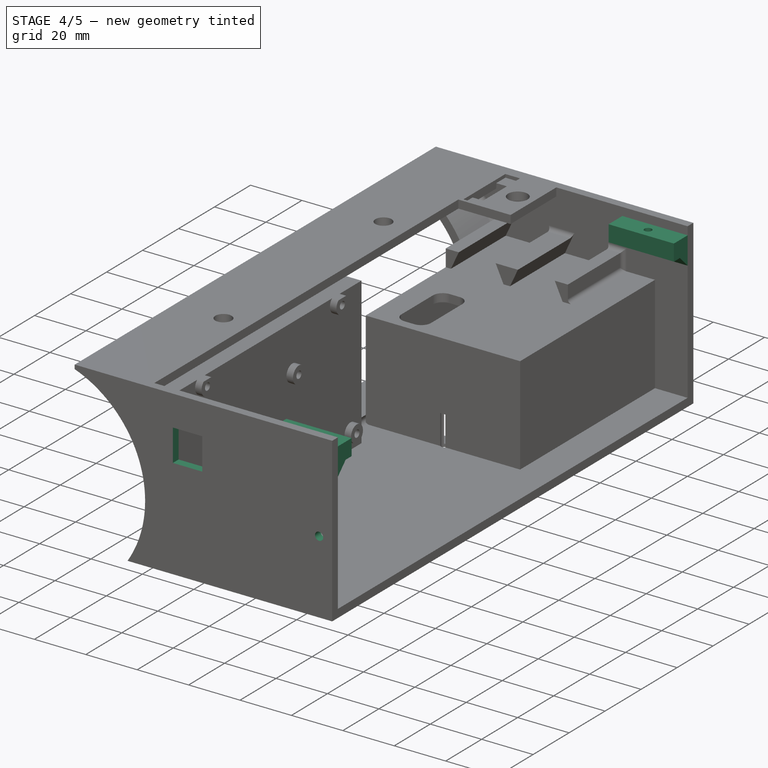
[diagram: stage 4 of 5 — iso view after this stage's code; geometry added in this stage tinted green]
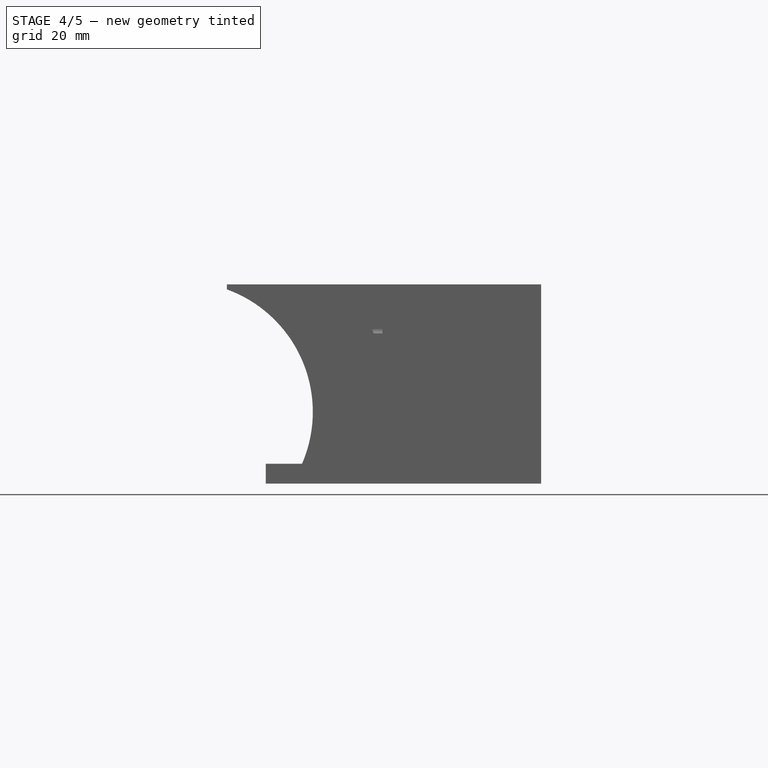
[diagram: stage 4 of 5 — front view after this stage's code; geometry added in this stage tinted green]
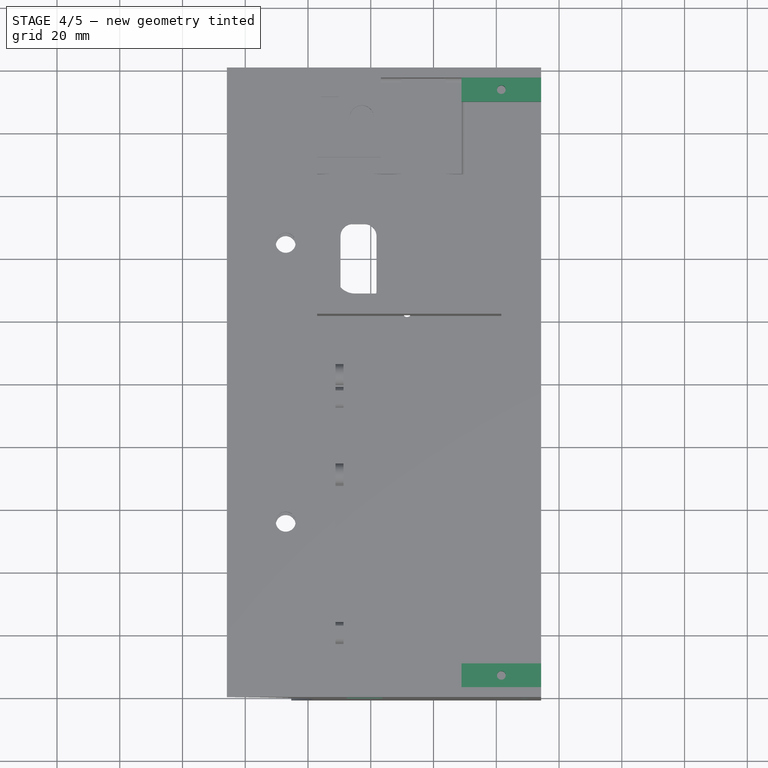
[diagram: stage 4 of 5 — top view after this stage's code; geometry added in this stage tinted green]
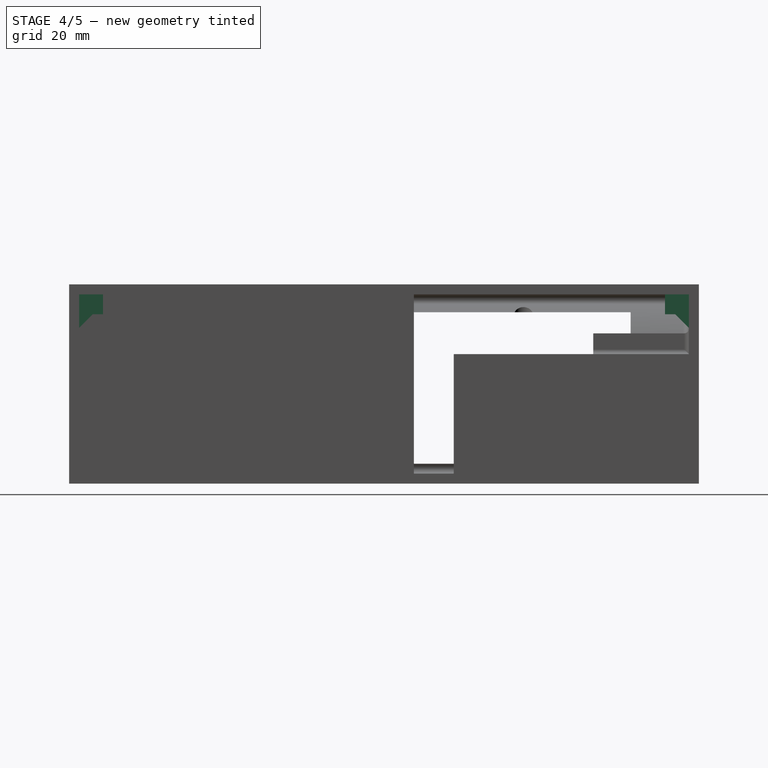
[diagram: stage 4 of 5 — right view after this stage's code; geometry added in this stage tinted green]
FEATURE [PartDesign::Fillet] Fillet001
  Base = -> Pad008 [Edge54,Edge50,Edge46,Edge91,Edge45]
  BaseFeature = -> Pad008
  Placement = pos=(0,0,0) rot=(1,0,0;1.5708rad)
  Radius = 1.524
  SupportTransform = false
  UseAllEdges = false
FEATURE [Sketcher::SketchObject] Sketch020
  ExternalGeometry = -> [Fillet001]
  FullyConstrained = true
  MapMode = 5
  Placement = pos=(-1.33e-14,6.6e-15,60.325) rot=(0,0,1;3.14159rad)
  Support = -> [Fillet001]
  sketch-geometry (8):
    g0: LineSegment StartX=-114.3 StartY=197.485 StartZ=0 EndX=-88.9 EndY=197.485 EndZ=0
    g1: LineSegment StartX=-88.9 StartY=197.485 StartZ=0 EndX=-88.9 EndY=189.865 EndZ=0
    g2: LineSegment StartX=-88.9 StartY=189.865 StartZ=0 EndX=-114.3 EndY=189.865 EndZ=0
    g3: LineSegment StartX=-114.3 StartY=189.865 StartZ=0 EndX=-114.3 EndY=197.485 EndZ=0
    g4: LineSegment StartX=-114.3 StartY=3.175 StartZ=0 EndX=-88.9 EndY=3.175 EndZ=0
    g5: LineSegment StartX=-88.9 StartY=3.175 StartZ=0 EndX=-88.9 EndY=10.795 EndZ=0
    g6: LineSegment StartX=-88.9 StartY=10.795 StartZ=0 EndX=-114.3 EndY=10.795 EndZ=0
    g7: LineSegment StartX=-114.3 StartY=10.795 StartZ=0 EndX=-114.3 EndY=3.175 EndZ=0
  constraints (21):
    c: Coincident(g0,g1)
    c: Coincident(g1,g2)
    c: Coincident(g2,g3)
    c: Coincident(g3,g0)
    c: Horizontal(g0)
    c: Horizontal(g2)
    c: Vertical(g1)
    c: Vertical(g3)
    c: Coincident(g0,g-3)
    c: Coincident(g4,g5)
    c: Coincident(g5,g6)
    c: Coincident(g6,g7)
    c: Coincident(g7,g4)
    c: Horizontal(g4)
    c: Horizontal(g6)
    c: Vertical(g7)
    c: Coincident(g4,g-4)
    c: Tangent(g5,g1)
    c: Equal(g1,g5)
    c: Distance(g7) = 7.62
    c: Distance(g6) = 25.4
FEATURE [PartDesign::Pad] Pad009
  BaseFeature = -> Fillet001
  Direction = (-2e-16,3e-16,1)
  Length = 6.35
  Length2 = 10.0076
  Placement = pos=(0,0,0) rot=(1,0,0;1.5708rad)
  Profile = -> Sketch020
  ReferenceAxis = -> Sketch020 [N_Axis]
  Reversed = true
  Type = 0
FEATURE [PartDesign::Chamfer] Chamfer
  Angle = 45
  Base = -> Pad009 [Edge224,Edge26]
  BaseFeature = -> Pad009
  ChamferType = 0
  FlipDirection = false
  Placement = pos=(0,0,0) rot=(1,0,0;1.5708rad)
  Size = 4.318
  Size2 = 1
  SupportTransform = false
  UseAllEdges = false
FEATURE [Sketcher::SketchObject] Sketch021
  ExternalGeometry = -> [Chamfer]
  FullyConstrained = true
  MapMode = 5
  Placement = pos=(-1.27e-14,1.99e-14,60.325) rot=(0,0,1;3.14159rad)
  Support = -> [Chamfer]
  sketch-geometry (5):
    g0: Circle CenterX=-101.6 CenterY=193.675 CenterZ=0 NormalX=0 NormalY=0 NormalZ=1 AngleXU=0 Radius=1.397
    g1: Circle CenterX=-101.6 CenterY=6.985 CenterZ=0 NormalX=0 NormalY=0 NormalZ=1 AngleXU=0 Radius=1.397
    g2: LineSegment StartX=-101.6 StartY=193.675 StartZ=0 EndX=-101.6 EndY=6.985 EndZ=0
    g3: LineSegment StartX=-101.6 StartY=6.985 StartZ=0 EndX=-88.9 EndY=6.985 EndZ=0
    g4: LineSegment StartX=-101.6 StartY=193.675 StartZ=0 EndX=-88.9 EndY=193.675 EndZ=0
  constraints (11):
    c: Coincident(g2,g0)
    c: Coincident(g2,g1)
    c: Equal(g1,g0)
    c: Diameter(g0) = 2.794
    c: Symmetric(g-3,g-3,g2)
    c: Coincident(g3,g1)
    c: Horizontal(g3)
    c: Symmetric(g-6,g-6,g3)
    c: Coincident(g4,g0)
    c: Horizontal(g4)
    c: Symmetric(g-5,g-5,g4)
FEATURE [PartDesign::Pocket] Pocket011
  BaseFeature = -> Chamfer
  Direction = (2e-16,-4e-16,-1)
  Length = 10.16
  Length2 = 5.0038
  Placement = pos=(0,0,0) rot=(1,0,0;1.5708rad)
  Profile = -> Sketch021
  ReferenceAxis = -> Sketch021 [N_Axis]
  Type = 0
FEATURE [Sketcher::SketchObject] Sketch022
  ExternalGeometry = -> [Pocket011]
  FullyConstrained = true
  MapMode = 5
  Placement = pos=(0,0,1.48e-14) rot=(1,0,0;3.14159rad)
  Support = -> [Pocket011]
  sketch-geometry (14):
    g0: LineSegment StartX=27.305 StartY=59.1062 StartZ=0 EndX=32.893 EndY=62.3325 EndZ=0
    g1: LineSegment StartX=32.893 StartY=62.3325 StartZ=0 EndX=38.481 EndY=59.1062 EndZ=0
    g2: LineSegment StartX=38.481 StartY=59.1062 StartZ=0 EndX=38.481 EndY=52.6538 EndZ=0
    g3: LineSegment StartX=38.481 StartY=52.6538 StartZ=0 EndX=32.893 EndY=49.4275 EndZ=0
    g4: LineSegment StartX=32.893 StartY=49.4275 StartZ=0 EndX=27.305 EndY=52.6538 EndZ=0
    g5: LineSegment StartX=27.305 StartY=52.6538 StartZ=0 EndX=27.305 EndY=59.1062 EndZ=0
    g6: Circle CenterX=32.893 CenterY=55.88 CenterZ=0 NormalX=0 NormalY=0 NormalZ=1 AngleXU=0 Radius=5.588
    g7: Circle CenterX=32.893 CenterY=144.78 CenterZ=0 NormalX=0 NormalY=0 NormalZ=1 AngleXU=0 Radius=5.588
    g8: LineSegment StartX=27.305 StartY=148.006 StartZ=0 EndX=32.893 EndY=151.232 EndZ=0
    g9: LineSegment StartX=32.893 StartY=151.232 StartZ=0 EndX=38.481 EndY=148.006 EndZ=0
    g10: LineSegment StartX=38.481 StartY=148.006 StartZ=0 EndX=38.481 EndY=141.554 EndZ=0
    g11: LineSegment StartX=38.481 StartY=141.554 StartZ=0 EndX=32.893 EndY=138.328 EndZ=0
    g12: LineSegment StartX=32.893 StartY=138.328 StartZ=0 EndX=27.305 EndY=141.554 EndZ=0
    g13: LineSegment StartX=27.305 StartY=141.554 StartZ=0 EndX=27.305 EndY=148.006 EndZ=0
  constraints (40):
    c: Coincident(g0,g1)
    c: Coincident(g1,g2)
    c: Coincident(g2,g3)
    c: Coincident(g3,g4)
    c: Coincident(g4,g5)
    c: Coincident(g5,g0)
    c: Equal(g0,g5)
    c: Equal(g5,g4)
    c: Equal(g4,g3)
    c: Equal(g3,g2)
    c: Equal(g2,g1)
    c: Tangent(g6,g0)
    c: Coincident(g6,g-3)
    c: Tangent(g5,g6)
    c: Tangent(g6,g4)
    c: Tangent(g3,g6)
    c: Tangent(g2,g6)
    c: Distance(g1,g4) = 11.176
    c: Parallel(g-4,g5)
    c: Parallel(g5,g2)
    c: Coincident(g7,g-5)
    c: Equal(g7,g6)
    c: Coincident(g8,g9)
    c: Coincident(g9,g10)
    c: Coincident(g10,g11)
    c: Coincident(g11,g12)
    c: Coincident(g12,g13)
    c: Coincident(g13,g8)
    c: Parallel(g13,g-4)
    c: Parallel(g10,g13)
    c: Tangent(g13,g7)
    c: Tangent(g8,g7)
    c: Tangent(g9,g7)
    c: Tangent(g10,g7)
    c: Tangent(g11,g7)
    c: Tangent(g7,g12)
    c: Equal(g13,g12)
    c: Equal(g12,g11)
    c: Equal(g11,g10)
    c: Equal(g10,g9)
FEATURE [PartDesign::Pocket] Pocket012
  BaseFeature = -> Pocket011
  Direction = (1e-16,1.3e-15,1)
  Length = 3.175
  Length2 = 5.0038
  Placement = pos=(0,0,0) rot=(1,0,0;1.5708rad)
  Profile = -> Sketch022
  ReferenceAxis = -> Sketch022 [N_Axis]
  Type = 0
FEATURE [Sketcher::SketchObject] Sketch023
  ExternalGeometry = -> [Pocket012]
  FullyConstrained = true
  MapMode = 5
  Placement = pos=(0,-200.66,4.41e-14) rot=(1,0,0;1.5708rad)
  Support = -> [Pocket012]
  sketch-geometry (1):
    g0: Circle CenterX=109.22 CenterY=28.575 CenterZ=0 NormalX=0 NormalY=0 NormalZ=1 AngleXU=0 Radius=1.5875
  constraints (3):
    c: Diameter(g0) = 3.175
    c: Distance(g0,g-4) = 5.08
    c: Distance(g0,g-3) = 25.4
FEATURE [PartDesign::Pocket] Pocket013
  BaseFeature = -> Pocket012
  Direction = (0,1,-7e-16)
  Length = 5.0038
  Length2 = 5.0038
  Placement = pos=(0,0,0) rot=(1,0,0;1.5708rad)
  Profile = -> Sketch023
  ReferenceAxis = -> Sketch023 [N_Axis]
  Type = 0
FEATURE [Sketcher::SketchObject] Sketch024
  ExternalGeometry = -> [Pocket013]
  FullyConstrained = true
  MapMode = 5
  Placement = pos=(0,-200.66,4.41e-14) rot=(1,0,0;1.5708rad)
  Support = -> [Pocket013]
  sketch-geometry (4):
    g0: LineSegment StartX=52.324 StartY=51.5874 StartZ=0 EndX=63.754 EndY=51.5874 EndZ=0
    g1: LineSegment StartX=63.754 StartY=51.5874 StartZ=0 EndX=63.754 EndY=39.1414 EndZ=0
    g2: LineSegment StartX=63.754 StartY=39.1414 StartZ=0 EndX=52.324 EndY=39.1414 EndZ=0
    g3: LineSegment StartX=52.324 StartY=39.1414 StartZ=0 EndX=52.324 EndY=51.5874 EndZ=0
  constraints (12):
    c: Coincident(g0,g1)
    c: Coincident(g1,g2)
    c: Coincident(g2,g3)
    c: Coincident(g3,g0)
    c: Horizontal(g0)
    c: Horizontal(g2)
    c: Vertical(g1)
    c: Vertical(g3)
    c: Distance(g1) = 12.446
    c: Distance(g0) = 11.43
    c: Distance(g0,g-3) = 50.546
    c: Distance(g1,g-4) = 35.9664
FEATURE [PartDesign::Pocket] Pocket014
  BaseFeature = -> Pocket013
  Direction = (0,1,-7e-16)
  Length = 5.0038
  Length2 = 5.0038
  Placement = pos=(0,0,0) rot=(1,0,0;1.5708rad)
  Profile = -> Sketch024
  ReferenceAxis = -> Sketch024 [N_Axis]
  Type = 0
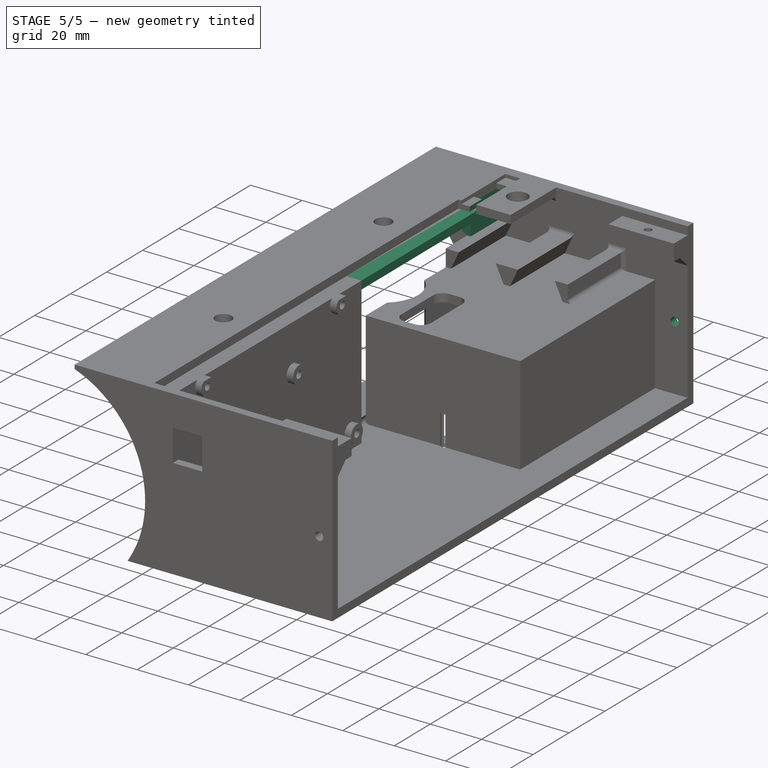
[diagram: stage 5 of 5 — iso view after this stage's code; geometry added in this stage tinted green]
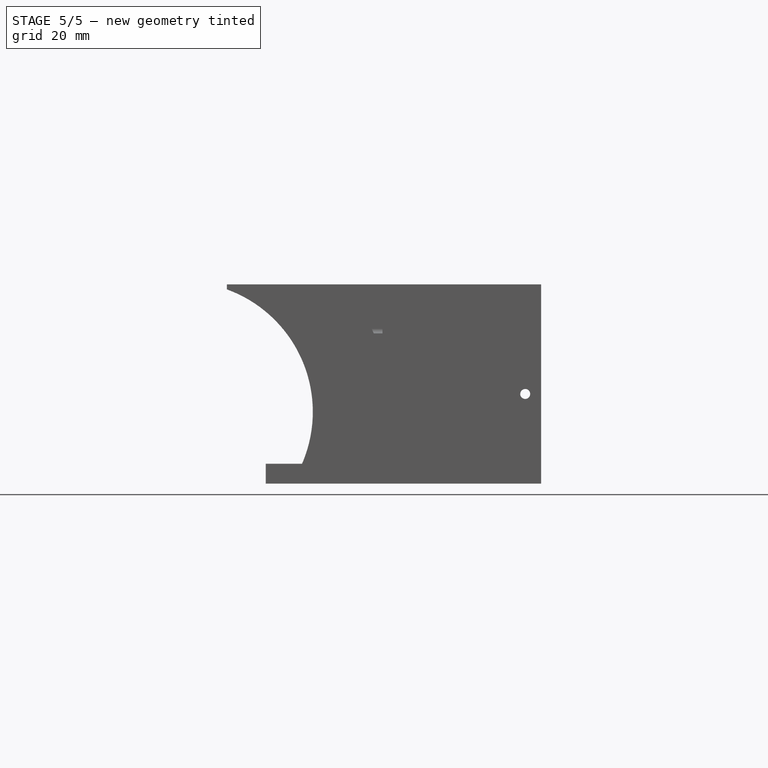
[diagram: stage 5 of 5 — front view after this stage's code; geometry added in this stage tinted green]
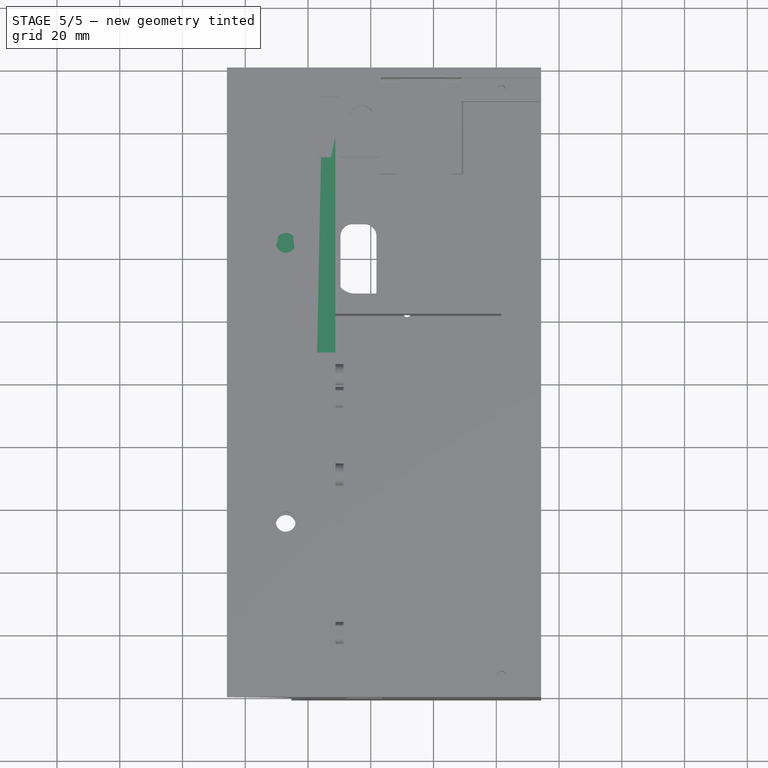
[diagram: stage 5 of 5 — top view after this stage's code; geometry added in this stage tinted green]
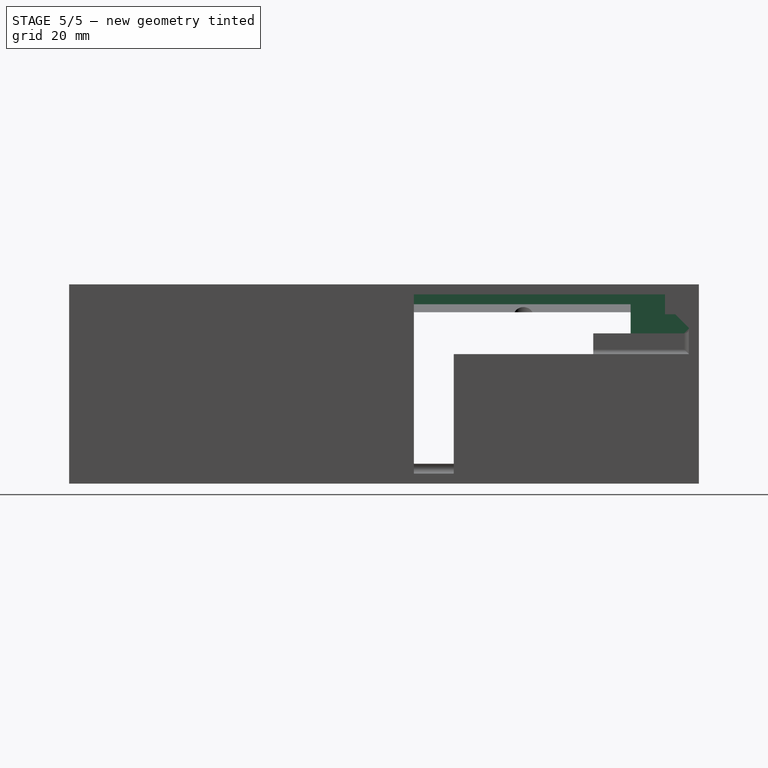
[diagram: stage 5 of 5 — right view after this stage's code; geometry added in this stage tinted green]
FEATURE [Sketcher::SketchObject] Sketch025
  ExternalGeometry = -> [Pocket014]
  FullyConstrained = true
  MapMode = 5
  Placement = pos=(0,1.032e-13,41.275) rot=(0,0,1;3.14159rad)
  Support = -> [Pocket014]
  sketch-geometry (1):
    g0: Circle CenterX=-32.893 CenterY=55.88 CenterZ=0 NormalX=0 NormalY=0 NormalZ=1 AngleXU=0 Radius=13.462
  constraints (2):
    c: Diameter(g0) = 26.924
    c: Coincident(g-3,g0)
FEATURE [PartDesign::Pocket] Pocket015
  BaseFeature = -> Pocket014
  Direction = (0,-3.3e-15,-1)
  Length = 0
  Length2 = 5.0038
  Placement = pos=(0,0,0) rot=(1,0,0;1.5708rad)
  Profile = -> Sketch025
  ReferenceAxis = -> Sketch025 [N_Axis]
  Type = 3
  UpToFace = -> Pocket014 [Face110]
FEATURE [Sketcher::SketchObject] Sketch026
  ExternalGeometry = -> [Pocket015]
  FullyConstrained = true
  MapMode = 5
  Placement = pos=(0,9.71e-14,60.325) rot=(1,0,0;3.14159rad)
  Support = -> [Pocket015]
  sketch-geometry (4):
    g0: LineSegment StartX=42.8942 StartY=3.175 StartZ=0 EndX=26.7693 EndY=3.175 EndZ=0
    g1: LineSegment StartX=26.7693 StartY=3.175 StartZ=0 EndX=26.7693 EndY=21.717 EndZ=0
    g2: LineSegment StartX=26.7693 StartY=21.717 StartZ=0 EndX=42.8942 EndY=21.717 EndZ=0
    g3: LineSegment StartX=42.8942 StartY=21.717 StartZ=0 EndX=42.8942 EndY=3.175 EndZ=0
  constraints (10):
    c: Coincident(g0,g1)
    c: Coincident(g1,g2)
    c: Coincident(g2,g3)
    c: Coincident(g3,g0)
    c: Horizontal(g0)
    c: Horizontal(g2)
    c: Vertical(g1)
    c: Vertical(g3)
    c: Coincident(g0,g-3)
    c: Coincident(g1,g-6)
FEATURE [PartDesign::Pad] Pad010
  BaseFeature = -> Pocket015
  Direction = (0,-2.5e-15,-1)
  Length = 10.0076
  Length2 = 10.0076
  Placement = pos=(0,0,0) rot=(1,0,0;1.5708rad)
  Profile = -> Sketch026
  ReferenceAxis = -> Sketch026 [N_Axis]
  Refine = true
  Type = 3
  UpToFace = -> Pocket015 [Face69]
FEATURE [PartDesign::Chamfer] Chamfer001
  Angle = 45
  Base = -> Pad010 [Edge107]
  BaseFeature = -> Pad010
  ChamferType = 0
  FlipDirection = false
  Placement = pos=(0,0,0) rot=(1,0,0;1.5708rad)
  Size = 1.524
  Size2 = 1
  SupportTransform = false
  UseAllEdges = false
FEATURE [Sketcher::SketchObject] Sketch027
  ExternalGeometry = -> [Chamfer001]
  FullyConstrained = true
  MapMode = 5
  Placement = pos=(-1.08e-14,9.08e-14,63.5) rot=(0,0,1;3.14159rad)
  Support = -> [Chamfer001]
  sketch-geometry (4):
    g0: LineSegment StartX=-44.1301 StartY=22.4536 StartZ=0 EndX=-49.8451 EndY=22.4536 EndZ=0
    g1: LineSegment StartX=-49.8451 StartY=22.4536 StartZ=0 EndX=-49.8451 EndY=28.575 EndZ=0
    g2: LineSegment StartX=-49.8451 StartY=28.575 StartZ=0 EndX=-44.1301 EndY=28.575 EndZ=0
    g3: LineSegment StartX=-44.1301 StartY=28.575 StartZ=0 EndX=-44.1301 EndY=22.4536 EndZ=0
  constraints (9):
    c: Coincident(g0,g1)
    c: Coincident(g1,g2)
    c: Coincident(g2,g3)
    c: Coincident(g3,g0)
    c: Vertical(g1)
    c: Vertical(g3)
    c: Coincident(g0,g-3)
    c: Coincident(g0,g-3)
    c: Tangent(g2,g-4)
FEATURE [PartDesign::Pocket] Pocket016
  BaseFeature = -> Chamfer001
  Direction = (2e-16,-1.6e-15,-1)
  Length = 5.0038
  Length2 = 5.0038
  Placement = pos=(0,0,0) rot=(1,0,0;1.5708rad)
  Profile = -> Sketch027
  ReferenceAxis = -> Sketch027 [N_Axis]
  Refine = true
  Type = 0
FEATURE [Sketcher::SketchObject] Sketch028
  ExternalGeometry = -> [Pocket016]
  FullyConstrained = true
  MapMode = 5
  Placement = pos=(42.8942,0,0) rot=(0.707107,0,0.707107;3.14159rad)
  Support = -> [Pocket016]
  sketch-geometry (4):
    g0: LineSegment StartX=60.325 StartY=21.717 StartZ=0 EndX=57.15 EndY=21.717 EndZ=0
    g1: LineSegment StartX=57.15 StartY=21.717 StartZ=0 EndX=57.15 EndY=90.805 EndZ=0
    g2: LineSegment StartX=57.15 StartY=90.805 StartZ=0 EndX=60.325 EndY=90.805 EndZ=0
    g3: LineSegment StartX=60.325 StartY=90.805 StartZ=0 EndX=60.325 EndY=21.717 EndZ=0
  constraints (10):
    c: Coincident(g0,g1)
    c: Coincident(g1,g2)
    c: Coincident(g2,g3)
    c: Coincident(g3,g0)
    c: Horizontal(g0)
    c: Horizontal(g2)
    c: Vertical(g1)
    c: Coincident(g0,g-4)
    c: Coincident(g2,g-3)
    c: Distance(g0) = 3.175
FEATURE [PartDesign::Pad] Pad011
  BaseFeature = -> Pocket016
  Direction = (1,0,-2e-16)
  Length = 5.842
  Length2 = 19.304
  Placement = pos=(0,0,0) rot=(1,0,0;1.5708rad)
  Profile = -> Sketch028
  ReferenceAxis = -> Sketch028 [N_Axis]
  Type = 4
FEATURE [Sketcher::SketchObject] Sketch029
  ExternalGeometry = -> [Pad011]
  FullyConstrained = true
  MapMode = 5
  Placement = pos=(0,1e-16,0) rot=(-1,0,0;1.5708rad)
  Support = -> [Pad011]
  sketch-geometry (1):
    g0: Circle CenterX=109.22 CenterY=-28.575 CenterZ=0 NormalX=0 NormalY=0 NormalZ=1 AngleXU=0 Radius=1.5875
  constraints (2):
    c: Coincident(g0,g-3)
    c: Equal(g-3,g0)
FEATURE [PartDesign::Pocket] Pocket017
  BaseFeature = -> Pad011
  Direction = (0,-1,2e-16)
  Length = 5.0038
  Length2 = 5.0038
  Placement = pos=(0,0,0) rot=(1,0,0;1.5708rad)
  Profile = -> Sketch029
  ReferenceAxis = -> Sketch029 [N_Axis]
  Type = 0
FEATURE [Sketcher::SketchObject] Sketch030
  ExternalGeometry = -> [Pocket017]
  FullyConstrained = true
  MapMode = 5
  Placement = pos=(1.33e-14,6.6e-15,60.325) rot=(0,0,1;3.14159rad)
  Support = -> [Pocket017]
  sketch-geometry (5):
    g0: LineSegment StartX=-44.1301 StartY=28.575 StartZ=0 EndX=-47.3051 EndY=28.575 EndZ=0
    g1: LineSegment StartX=-47.3051 StartY=28.575 StartZ=0 EndX=-47.3051 EndY=21.717 EndZ=0
    g2: LineSegment StartX=-47.3051 StartY=21.717 StartZ=0 EndX=-44.1301 EndY=21.717 EndZ=0
    g3: LineSegment StartX=-44.1301 StartY=21.717 StartZ=0 EndX=-44.1301 EndY=28.575 EndZ=0
    g4: LineSegment StartX=-48.7362 StartY=21.717 StartZ=0 EndX=-47.3051 EndY=21.717 EndZ=0
  constraints (13):
    c: Coincident(g0,g1)
    c: Coincident(g1,g2)
    c: Coincident(g2,g3)
    c: Coincident(g3,g0)
    c: Horizontal(g0)
    c: Horizontal(g2)
    c: Vertical(g1)
    c: Vertical(g3)
    c: Coincident(g0,g-4)
    c: Coincident(g4,g-3)
    c: Coincident(g4,g1)
    c: Tangent(g2,g4)
    c: Distance(g2) = 3.175
FEATURE [PartDesign::Pad] Pad012
  BaseFeature = -> Pocket017
  Direction = (2e-16,1e-16,1)
  Length = 10.0076
  Length2 = 10.0076
  Placement = pos=(0,0,0) rot=(1,0,0;1.5708rad)
  Profile = -> Sketch030
  ReferenceAxis = -> Sketch030 [N_Axis]
  Type = 3
  UpToFace = -> Pocket017 [Face77]
FEATURE [PartDesign::Body] Body  label="Nose Body"
  Group = -> [Sketch,Pad,Sketch001,Pad001,Sketch002,Pocket,DatumPlane,Sketch003,Pocket001,Fillet,Sketch004,Pocket002,Sketch005,Pocket003,Sketch006,Pad002,Sketch007,Pad003,Sketch008,Pocket004,Sketch009,Pocket005,Sketch010,Pad004,Sketch011,Pad005,Sketch012,Pocket006,Sketch013,Pad006,Sketch014,Pocket007,Sketch015,Pocket008,Sketch016,Pocket009,Sketch017,Pad007,Sketch018,Pocket010,Sketch019,Pad008,Fillet001,+24 more]
  Origin = -> Origin
  Tip = -> Pad012
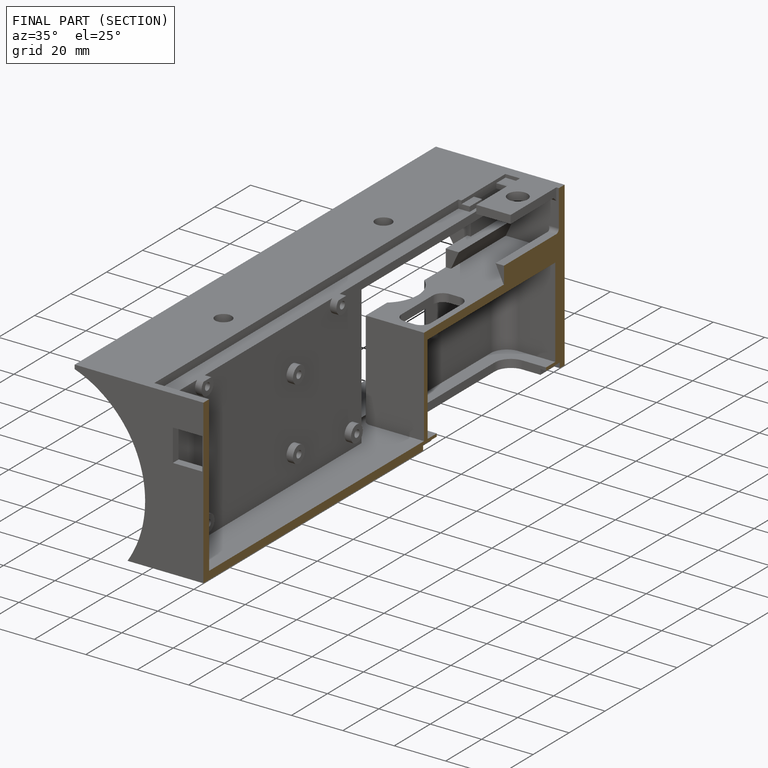
[diagram: finished part — half-section view (interior)]
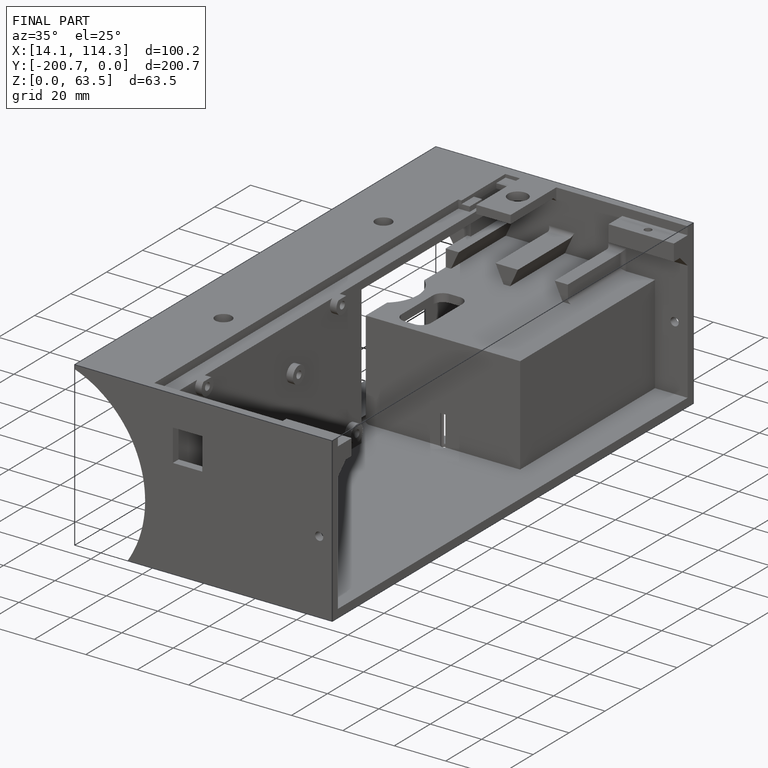
[diagram: finished part — iso view with bounding-box wireframe]
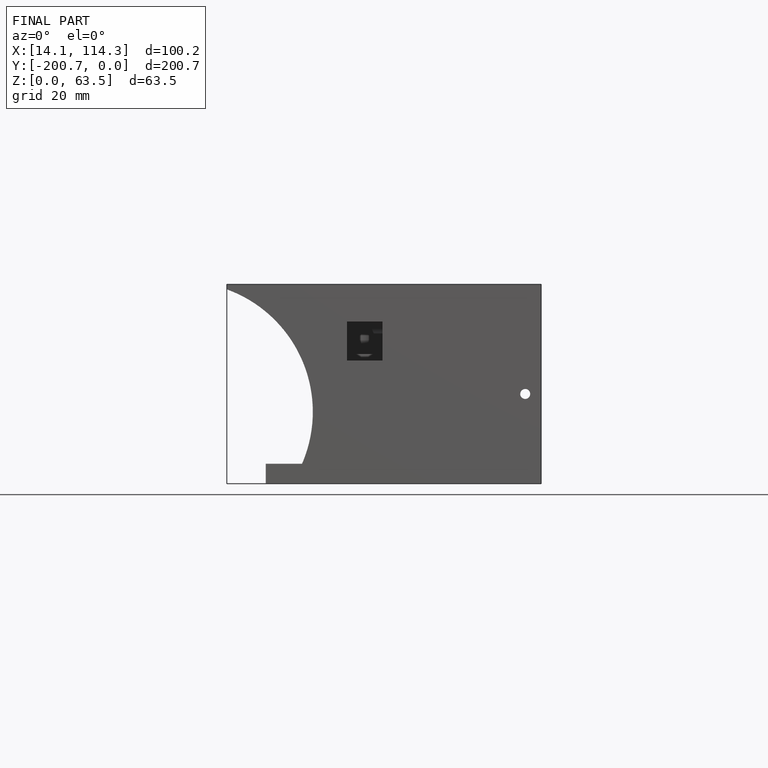
[diagram: finished part — front view with bounding-box wireframe]
